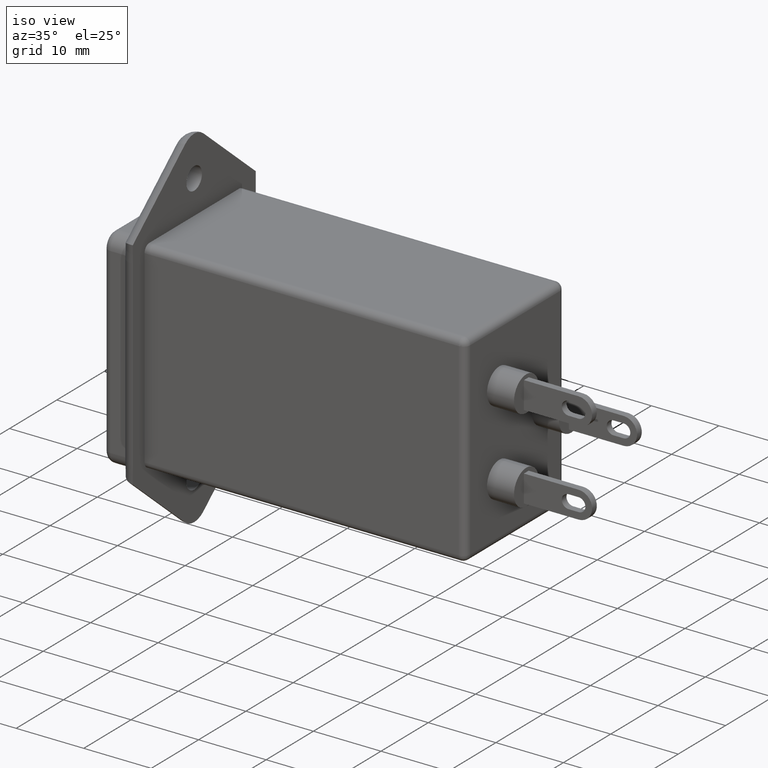
[diagram: clean part render]
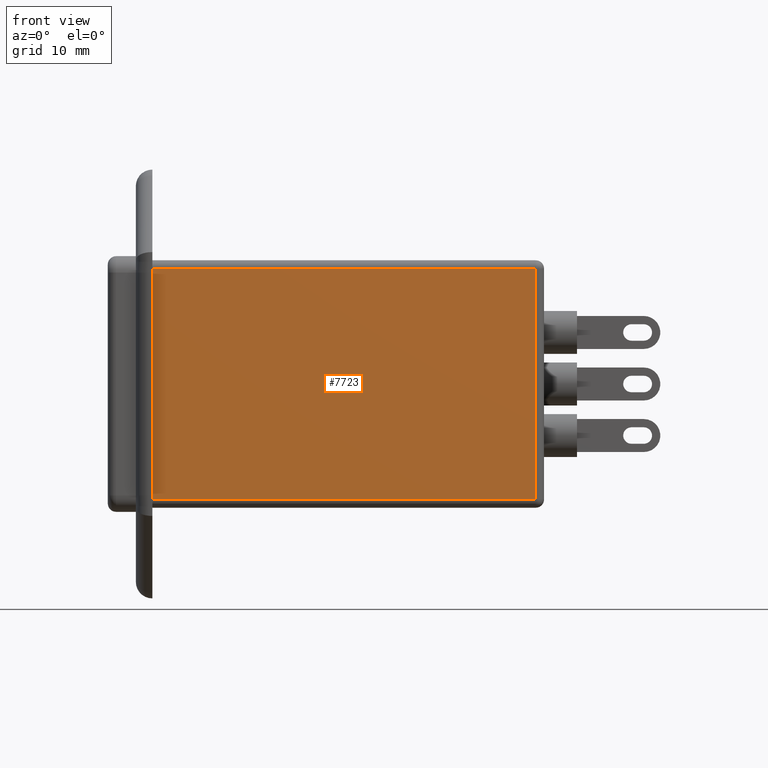
[diagram: tour spotlight — one face highlighted and labeled with its STEP entity id]
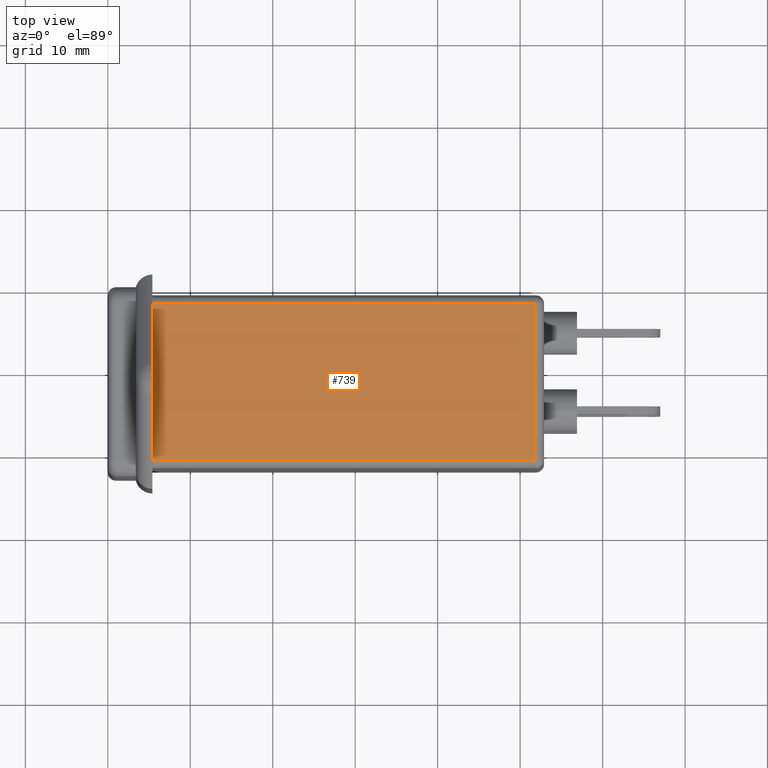
[diagram: tour spotlight — one face highlighted and labeled with its STEP entity id]
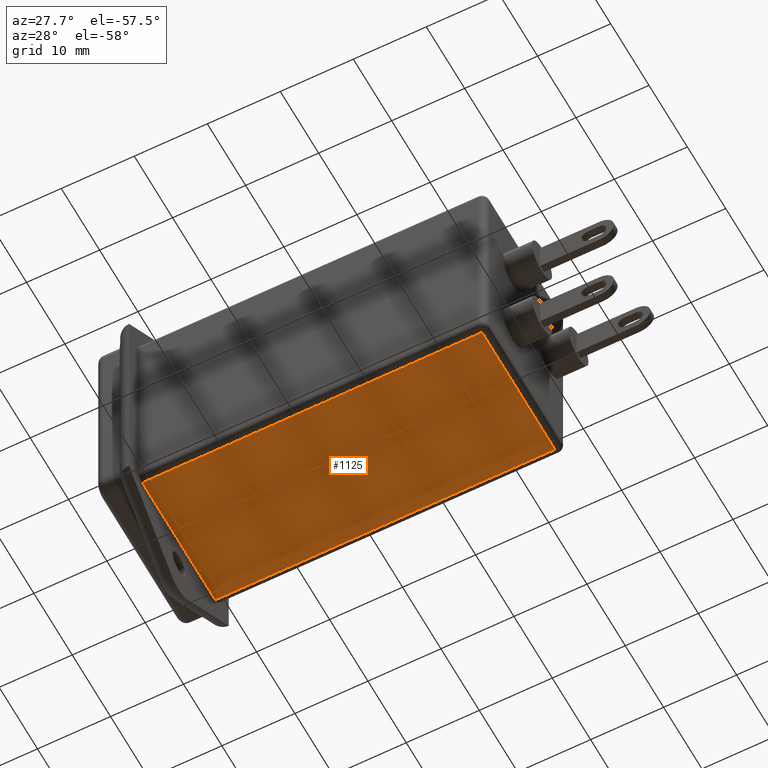
[diagram: tour spotlight — one face highlighted and labeled with its STEP entity id]
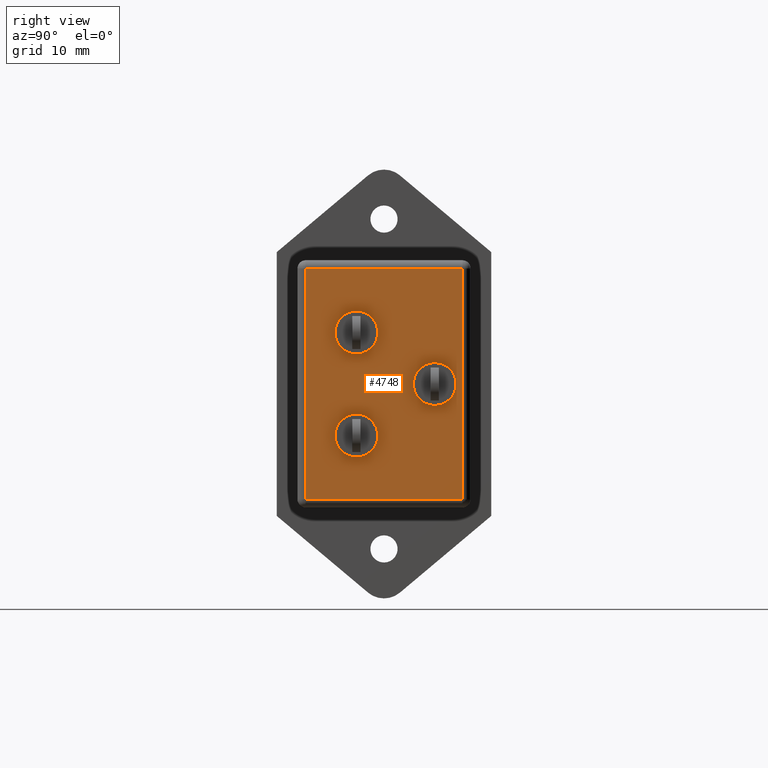
[diagram: tour spotlight — one face highlighted and labeled with its STEP entity id]
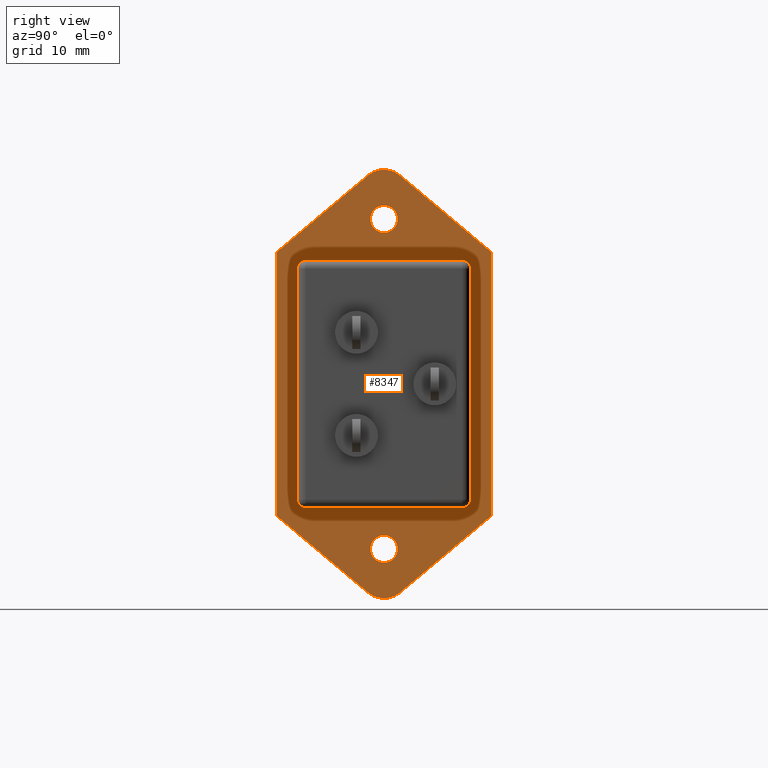
[diagram: tour spotlight — one face highlighted and labeled with its STEP entity id]
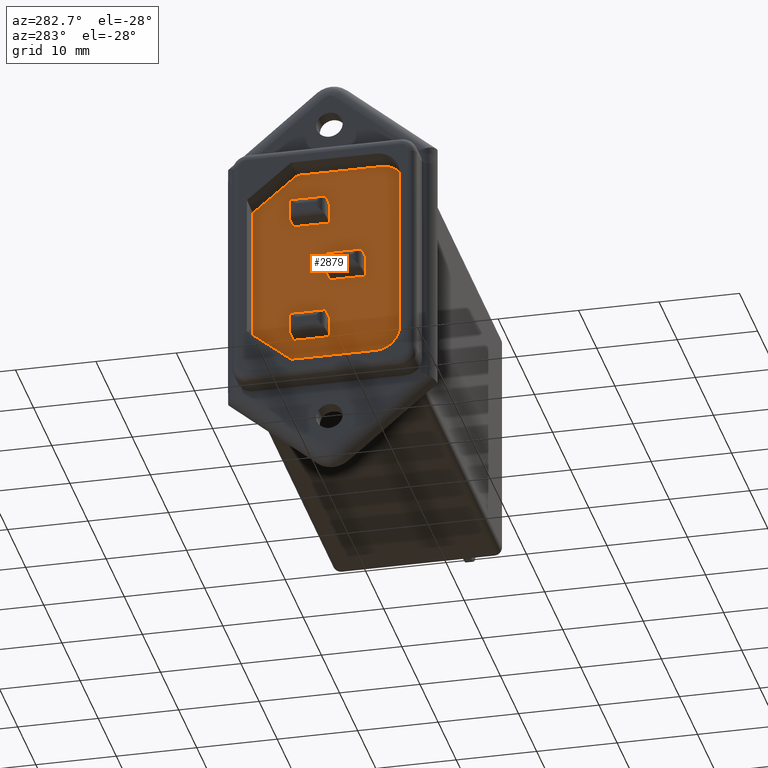
[diagram: tour spotlight — one face highlighted and labeled with its STEP entity id]
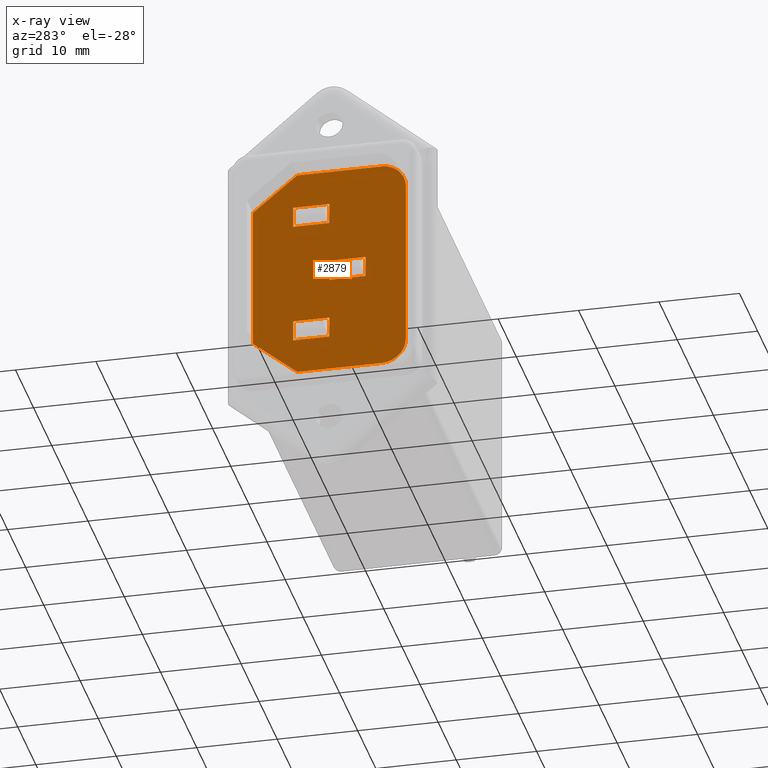
[diagram: x-ray of the same camera — body ghosted, this tour face saturated]
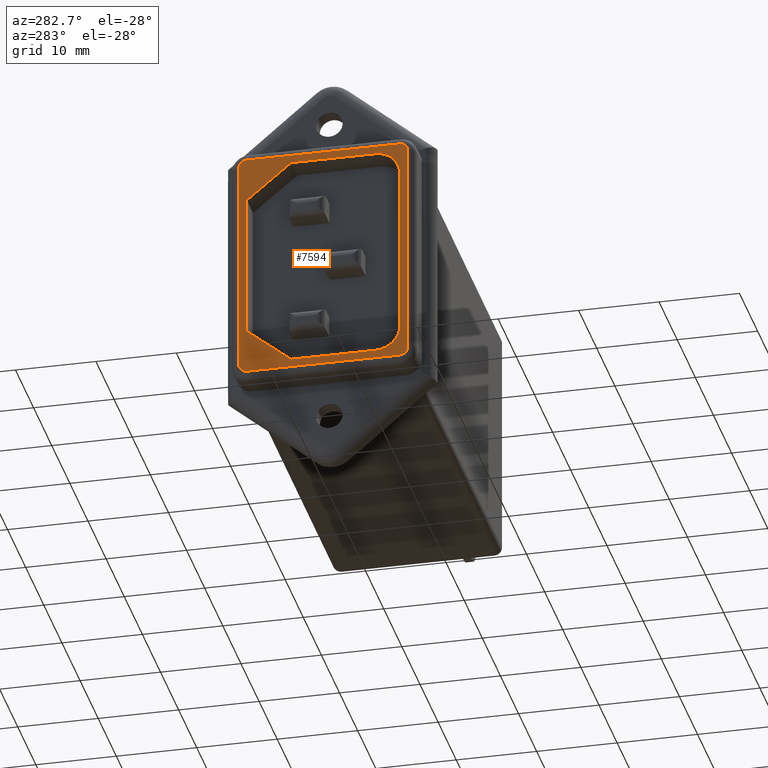
[diagram: tour spotlight — one face highlighted and labeled with its STEP entity id]
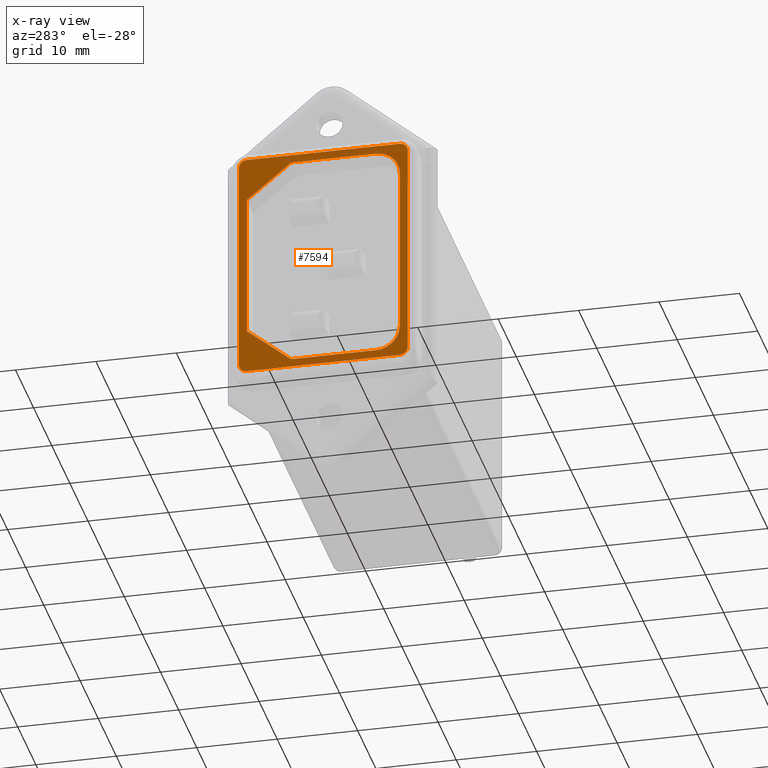
[diagram: x-ray of the same camera — body ghosted, this tour face saturated]
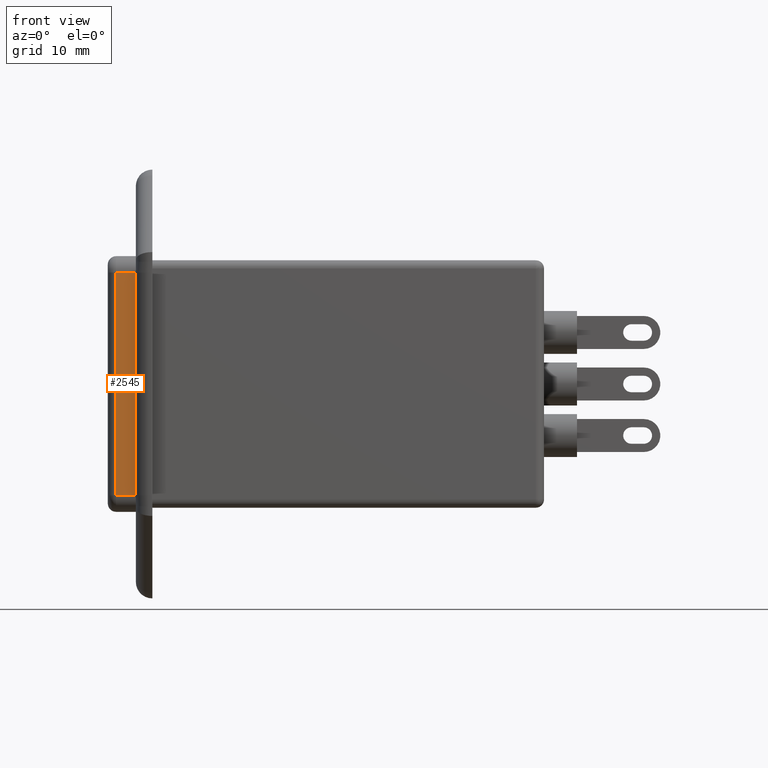
[diagram: tour spotlight — one face highlighted and labeled with its STEP entity id]
A machine part: a face-by-face anatomy tour. The part has 209 B-rep faces; the first image is the clean iso view, then the 8 largest visible faces are spotlighted one at a time (largest first), each with its STEP entity span.

Face 1 — front view, entity #7723. In plain terms, the highlighted planar face has unit normal (-0, 1, 0).
Definition (entity closure, byte-faithful):
#143 = DIRECTION ( 'NONE',  ( 1.000000000000000000, -0.0000000000000000000, -0.0000000000000000000 ) ) ;
#381 = VERTEX_POINT ( 'NONE', #2765 ) ;
#639 = VERTEX_POINT ( 'NONE', #6458 ) ;
#772 = LINE ( 'NONE', #8226, #7570 ) ;
#794 = CARTESIAN_POINT ( 'NONE',  ( 5.400000000000000400, -22.00000000000000400, 30.50000000000000000 ) ) ;
#1120 = EDGE_CURVE ( 'NONE', #7442, #1253, #772, .T. ) ;
#1253 = VERTEX_POINT ( 'NONE', #7876 ) ;
#1630 = DIRECTION ( 'NONE',  ( -0.0000000000000000000, 1.000000000000000000, 1.156482317317871500E-016 ) ) ;
#1675 = EDGE_CURVE ( 'NONE', #1253, #381, #2108, .T. ) ;
#2072 = ORIENTED_EDGE ( 'NONE', *, *, #1675, .T. ) ;
#2091 = EDGE_CURVE ( 'NONE', #639, #7442, #6577, .T. ) ;
#2108 = LINE ( 'NONE', #5713, #5853 ) ;
#2382 = ORIENTED_EDGE ( 'NONE', *, *, #8406, .T. ) ;
#2765 = CARTESIAN_POINT ( 'NONE',  ( 51.89999999999999900, -22.00000000000000400, 29.50000000000000000 ) ) ;
#2988 = DIRECTION ( 'NONE',  ( 0.0000000000000000000, -1.156482317317871500E-016, 1.000000000000000000 ) ) ;
#3012 = CARTESIAN_POINT ( 'NONE',  ( 52.90000000000000600, -22.00000000000000400, 30.50000000000000000 ) ) ;
#4036 = VECTOR ( 'NONE', #6012, 1000.000000000000000 ) ;
#5018 = FACE_OUTER_BOUND ( 'NONE', #6522, .T. ) ;
#5284 = CARTESIAN_POINT ( 'NONE',  ( 52.90000000000000600, -22.00000000000000400, 29.50000000000000000 ) ) ;
#5517 = AXIS2_PLACEMENT_3D ( 'NONE', #3012, #1630, #2988 ) ;
#5713 = CARTESIAN_POINT ( 'NONE',  ( 51.89999999999999900, -22.00000000000000400, 30.50000000000000000 ) ) ;
#5786 = LINE ( 'NONE', #5284, #4036 ) ;
#5853 = VECTOR ( 'NONE', #6271, 1000.000000000000000 ) ;
#6012 = DIRECTION ( 'NONE',  ( -1.000000000000000000, 0.0000000000000000000, 0.0000000000000000000 ) ) ;
#6083 = DIRECTION ( 'NONE',  ( 0.0000000000000000000, 1.156482317317871500E-016, -1.000000000000000000 ) ) ;
#6271 = DIRECTION ( 'NONE',  ( -0.0000000000000000000, -1.156482317317871500E-016, 1.000000000000000000 ) ) ;
#6458 = CARTESIAN_POINT ( 'NONE',  ( 5.400000000000000400, -22.00000000000000400, 29.50000000000000000 ) ) ;
#6510 = CARTESIAN_POINT ( 'NONE',  ( 5.400000000000000400, -22.00000000000000000, 1.499999999999997800 ) ) ;
#6522 = EDGE_LOOP ( 'NONE', ( #6856, #7289, #2072, #2382 ) ) ;
#6577 = LINE ( 'NONE', #794, #6988 ) ;
#6856 = ORIENTED_EDGE ( 'NONE', *, *, #2091, .T. ) ;
#6988 = VECTOR ( 'NONE', #6083, 1000.000000000000000 ) ;
#7289 = ORIENTED_EDGE ( 'NONE', *, *, #1120, .T. ) ;
#7442 = VERTEX_POINT ( 'NONE', #6510 ) ;
#7570 = VECTOR ( 'NONE', #143, 1000.000000000000000 ) ;
#7723 = ADVANCED_FACE ( 'NONE', ( #5018 ), #8372, .F. ) ;
#7876 = CARTESIAN_POINT ( 'NONE',  ( 51.89999999999999900, -22.00000000000000000, 1.499999999999999300 ) ) ;
#8226 = CARTESIAN_POINT ( 'NONE',  ( 52.90000000000000600, -22.00000000000000000, 1.499999999999997800 ) ) ;
#8372 = PLANE ( 'NONE',  #5517 ) ;
#8406 = EDGE_CURVE ( 'NONE', #381, #639, #5786, .T. ) ;

Face 2 — top view, entity #739. In plain terms, the highlighted planar face has unit normal (0, 0, -1).
Definition (entity closure, byte-faithful):
#476 = CARTESIAN_POINT ( 'NONE',  ( 51.89999999999999900, -1.999999999999995800, 30.50000000000000000 ) ) ;
#528 = EDGE_LOOP ( 'NONE', ( #1646, #2047, #8575, #7012 ) ) ;
#644 = CARTESIAN_POINT ( 'NONE',  ( 52.90000000000000600, -0.9999999999999954500, 30.50000000000000000 ) ) ;
#645 = EDGE_CURVE ( 'NONE', #8440, #8127, #2164, .T. ) ;
#739 = ADVANCED_FACE ( 'NONE', ( #7384 ), #8476, .F. ) ;
#961 = EDGE_CURVE ( 'NONE', #6623, #8440, #6930, .T. ) ;
#1398 = DIRECTION ( 'NONE',  ( -1.000000000000000000, 0.0000000000000000000, -0.0000000000000000000 ) ) ;
#1477 = CARTESIAN_POINT ( 'NONE',  ( 52.90000000000000600, -21.00000000000000000, 30.50000000000000000 ) ) ;
#1646 = ORIENTED_EDGE ( 'NONE', *, *, #645, .T. ) ;
#2047 = ORIENTED_EDGE ( 'NONE', *, *, #5087, .T. ) ;
#2164 = LINE ( 'NONE', #3909, #7796 ) ;
#2483 = DIRECTION ( 'NONE',  ( 0.0000000000000000000, -1.000000000000000000, 0.0000000000000000000 ) ) ;
#2864 = VECTOR ( 'NONE', #3612, 1000.000000000000000 ) ;
#2904 = CARTESIAN_POINT ( 'NONE',  ( 51.89999999999999900, -0.9999999999999954500, 30.50000000000000000 ) ) ;
#2968 = LINE ( 'NONE', #2904, #2864 ) ;
#3408 = CARTESIAN_POINT ( 'NONE',  ( 5.400000000000000400, -1.999999999999995800, 30.50000000000000000 ) ) ;
#3612 = DIRECTION ( 'NONE',  ( -0.0000000000000000000, 1.000000000000000000, -0.0000000000000000000 ) ) ;
#3909 = CARTESIAN_POINT ( 'NONE',  ( 5.400000000000000400, -0.9999999999999954500, 30.50000000000000000 ) ) ;
#4104 = DIRECTION ( 'NONE',  ( 1.000000000000000000, -0.0000000000000000000, -0.0000000000000000000 ) ) ;
#4244 = VECTOR ( 'NONE', #4104, 1000.000000000000000 ) ;
#5077 = VERTEX_POINT ( 'NONE', #5437 ) ;
#5087 = EDGE_CURVE ( 'NONE', #8127, #5077, #6022, .T. ) ;
#5128 = AXIS2_PLACEMENT_3D ( 'NONE', #644, #8071, #1398 ) ;
#5437 = CARTESIAN_POINT ( 'NONE',  ( 51.89999999999999900, -21.00000000000000000, 30.50000000000000000 ) ) ;
#5999 = VECTOR ( 'NONE', #8411, 1000.000000000000000 ) ;
#6022 = LINE ( 'NONE', #1477, #4244 ) ;
#6623 = VERTEX_POINT ( 'NONE', #476 ) ;
#6930 = LINE ( 'NONE', #7760, #5999 ) ;
#7012 = ORIENTED_EDGE ( 'NONE', *, *, #961, .T. ) ;
#7384 = FACE_OUTER_BOUND ( 'NONE', #528, .T. ) ;
#7684 = CARTESIAN_POINT ( 'NONE',  ( 5.400000000000000400, -21.00000000000000000, 30.50000000000000000 ) ) ;
#7760 = CARTESIAN_POINT ( 'NONE',  ( 52.90000000000000600, -1.999999999999995800, 30.50000000000000000 ) ) ;
#7796 = VECTOR ( 'NONE', #2483, 1000.000000000000000 ) ;
#8056 = EDGE_CURVE ( 'NONE', #5077, #6623, #2968, .T. ) ;
#8071 = DIRECTION ( 'NONE',  ( 0.0000000000000000000, 0.0000000000000000000, -1.000000000000000000 ) ) ;
#8127 = VERTEX_POINT ( 'NONE', #7684 ) ;
#8411 = DIRECTION ( 'NONE',  ( -1.000000000000000000, 0.0000000000000000000, 0.0000000000000000000 ) ) ;
#8440 = VERTEX_POINT ( 'NONE', #3408 ) ;
#8476 = PLANE ( 'NONE',  #5128 ) ;
#8575 = ORIENTED_EDGE ( 'NONE', *, *, #8056, .T. ) ;

Face 3 — auxiliary view, entity #1125. In plain terms, the highlighted planar face has unit normal (-0, 0, 1).
Definition (entity closure, byte-faithful):
#31 = CARTESIAN_POINT ( 'NONE',  ( 51.89999999999999900, -1.999999999999997300, 0.4999999999999997800 ) ) ;
#60 = VERTEX_POINT ( 'NONE', #2878 ) ;
#350 = DIRECTION ( 'NONE',  ( -1.000000000000000000, 0.0000000000000000000, -0.0000000000000000000 ) ) ;
#1100 = VECTOR ( 'NONE', #5094, 1000.000000000000000 ) ;
#1125 = ADVANCED_FACE ( 'NONE', ( #3904 ), #1665, .F. ) ;
#1257 = CARTESIAN_POINT ( 'NONE',  ( 52.90000000000000600, -1.999999999999997300, 0.4999999999999997800 ) ) ;
#1665 = PLANE ( 'NONE',  #6160 ) ;
#1911 = ORIENTED_EDGE ( 'NONE', *, *, #4660, .T. ) ;
#2350 = VECTOR ( 'NONE', #5927, 1000.000000000000000 ) ;
#2359 = CARTESIAN_POINT ( 'NONE',  ( 52.90000000000000600, -0.9999999999999974500, 0.4999999999999997800 ) ) ;
#2576 = DIRECTION ( 'NONE',  ( 1.000000000000000000, -0.0000000000000000000, 0.0000000000000000000 ) ) ;
#2837 = EDGE_LOOP ( 'NONE', ( #7508, #1911, #6349, #4917 ) ) ;
#2872 = EDGE_CURVE ( 'NONE', #7859, #3985, #4966, .T. ) ;
#2875 = CARTESIAN_POINT ( 'NONE',  ( 5.400000000000000400, -1.999999999999997100, 0.4999999999999997800 ) ) ;
#2878 = CARTESIAN_POINT ( 'NONE',  ( 5.400000000000000400, -20.99999999999998900, 0.4999999999999997800 ) ) ;
#3014 = DIRECTION ( 'NONE',  ( 1.000000000000000000, 0.0000000000000000000, 0.0000000000000000000 ) ) ;
#3107 = CARTESIAN_POINT ( 'NONE',  ( 51.89999999999999900, -22.00000000000000000, 0.4999999999999997800 ) ) ;
#3904 = FACE_OUTER_BOUND ( 'NONE', #2837, .T. ) ;
#3985 = VERTEX_POINT ( 'NONE', #7098 ) ;
#4113 = LINE ( 'NONE', #4599, #2350 ) ;
#4237 = VECTOR ( 'NONE', #2576, 1000.000000000000000 ) ;
#4599 = CARTESIAN_POINT ( 'NONE',  ( 5.400000000000000400, -0.9999999999999974500, 0.4999999999999997800 ) ) ;
#4660 = EDGE_CURVE ( 'NONE', #3985, #60, #7615, .T. ) ;
#4917 = ORIENTED_EDGE ( 'NONE', *, *, #6790, .T. ) ;
#4966 = LINE ( 'NONE', #3107, #1100 ) ;
#5017 = LINE ( 'NONE', #1257, #4237 ) ;
#5044 = CARTESIAN_POINT ( 'NONE',  ( 52.90000000000000600, -20.99999999999999600, 0.4999999999999997800 ) ) ;
#5094 = DIRECTION ( 'NONE',  ( -0.0000000000000000000, -1.000000000000000000, 0.0000000000000000000 ) ) ;
#5927 = DIRECTION ( 'NONE',  ( -0.0000000000000000000, 1.000000000000000000, -0.0000000000000000000 ) ) ;
#6139 = VECTOR ( 'NONE', #350, 1000.000000000000000 ) ;
#6160 = AXIS2_PLACEMENT_3D ( 'NONE', #2359, #7011, #3014 ) ;
#6349 = ORIENTED_EDGE ( 'NONE', *, *, #6734, .T. ) ;
#6734 = EDGE_CURVE ( 'NONE', #60, #7713, #4113, .T. ) ;
#6790 = EDGE_CURVE ( 'NONE', #7713, #7859, #5017, .T. ) ;
#7011 = DIRECTION ( 'NONE',  ( -0.0000000000000000000, 0.0000000000000000000, 1.000000000000000000 ) ) ;
#7098 = CARTESIAN_POINT ( 'NONE',  ( 51.89999999999999900, -20.99999999999999600, 0.4999999999999997800 ) ) ;
#7508 = ORIENTED_EDGE ( 'NONE', *, *, #2872, .T. ) ;
#7615 = LINE ( 'NONE', #5044, #6139 ) ;
#7713 = VERTEX_POINT ( 'NONE', #2875 ) ;
#7859 = VERTEX_POINT ( 'NONE', #31 ) ;

Face 4 — right view, entity #4748. In plain terms, the highlighted planar face has unit normal (1, 0, 0).
Definition (entity closure, byte-faithful):
#16 = VERTEX_POINT ( 'NONE', #3421 ) ;
#324 = DIRECTION ( 'NONE',  ( 1.000000000000000000, 0.0000000000000000000, 0.0000000000000000000 ) ) ;
#492 = LINE ( 'NONE', #4818, #721 ) ;
#662 = DIRECTION ( 'NONE',  ( 0.0000000000000000000, 0.0000000000000000000, 1.000000000000000000 ) ) ;
#679 = CARTESIAN_POINT ( 'NONE',  ( 52.90000000000000600, -14.84595794948056400, 6.649999999999990600 ) ) ;
#687 = DIRECTION ( 'NONE',  ( 1.000000000000000000, 0.0000000000000000000, -0.0000000000000000000 ) ) ;
#721 = VECTOR ( 'NONE', #4087, 1000.000000000000000 ) ;
#790 = DIRECTION ( 'NONE',  ( -0.0000000000000000000, 6.505213034913026600E-017, 1.000000000000000000 ) ) ;
#798 = AXIS2_PLACEMENT_3D ( 'NONE', #7346, #8030, #7437 ) ;
#800 = VERTEX_POINT ( 'NONE', #6123 ) ;
#1148 = DIRECTION ( 'NONE',  ( 0.0000000000000000000, 0.0000000000000000000, -1.000000000000000000 ) ) ;
#1309 = VERTEX_POINT ( 'NONE', #679 ) ;
#1698 = AXIS2_PLACEMENT_3D ( 'NONE', #2551, #3202, #1874 ) ;
#1705 = CARTESIAN_POINT ( 'NONE',  ( 52.90000000000000600, -14.84595794948056400, 24.34999999999999800 ) ) ;
#1755 = DIRECTION ( 'NONE',  ( 0.0000000000000000000, 0.0000000000000000000, -1.000000000000000000 ) ) ;
#1874 = DIRECTION ( 'NONE',  ( 0.0000000000000000000, 0.0000000000000000000, -1.000000000000000000 ) ) ;
#1991 = EDGE_CURVE ( 'NONE', #16, #2013, #4683, .T. ) ;
#2013 = VERTEX_POINT ( 'NONE', #5295 ) ;
#2062 = ORIENTED_EDGE ( 'NONE', *, *, #2736, .T. ) ;
#2075 = EDGE_CURVE ( 'NONE', #4379, #7516, #3340, .T. ) ;
#2118 = CARTESIAN_POINT ( 'NONE',  ( 52.90000000000000600, -0.9999999999999974500, 1.499999999999999600 ) ) ;
#2251 = EDGE_CURVE ( 'NONE', #7516, #800, #6680, .T. ) ;
#2273 = CARTESIAN_POINT ( 'NONE',  ( 52.90000000000000600, -21.00000000000000000, 29.50000000000000000 ) ) ;
#2485 = DIRECTION ( 'NONE',  ( 1.000000000000000000, 0.0000000000000000000, 0.0000000000000000000 ) ) ;
#2503 = VECTOR ( 'NONE', #4745, 1000.000000000000000 ) ;
#2515 = AXIS2_PLACEMENT_3D ( 'NONE', #5312, #7275, #2633 ) ;
#2551 = CARTESIAN_POINT ( 'NONE',  ( 52.90000000000000600, -14.84595794948056400, 21.75000000000000000 ) ) ;
#2608 = CARTESIAN_POINT ( 'NONE',  ( 52.90000000000000600, -14.84595794948056400, 21.75000000000000000 ) ) ;
#2633 = DIRECTION ( 'NONE',  ( 0.0000000000000000000, 0.0000000000000000000, 1.000000000000000000 ) ) ;
#2664 = CARTESIAN_POINT ( 'NONE',  ( 52.90000000000000600, -20.99999999999999600, 1.499999999999999600 ) ) ;
#2736 = EDGE_CURVE ( 'NONE', #800, #6296, #8132, .T. ) ;
#2871 = CARTESIAN_POINT ( 'NONE',  ( 52.90000000000000600, -14.84595794948056400, 11.84999999999999100 ) ) ;
#2975 = EDGE_CURVE ( 'NONE', #3224, #1309, #7337, .T. ) ;
#3017 = CIRCLE ( 'NONE', #7262, 2.600000000000000100 ) ;
#3202 = DIRECTION ( 'NONE',  ( 1.000000000000000000, 0.0000000000000000000, 0.0000000000000000000 ) ) ;
#3224 = VERTEX_POINT ( 'NONE', #2871 ) ;
#3298 = CIRCLE ( 'NONE', #3722, 2.599999999999998300 ) ;
#3303 = VERTEX_POINT ( 'NONE', #8001 ) ;
#3315 = VECTOR ( 'NONE', #8554, 1000.000000000000000 ) ;
#3340 = LINE ( 'NONE', #2118, #2503 ) ;
#3395 = EDGE_LOOP ( 'NONE', ( #2062, #4217, #7502, #7085 ) ) ;
#3421 = CARTESIAN_POINT ( 'NONE',  ( 52.90000000000000600, -5.345957949480562900, 18.09999999999999800 ) ) ;
#3722 = AXIS2_PLACEMENT_3D ( 'NONE', #2608, #2485, #1148 ) ;
#3914 = EDGE_CURVE ( 'NONE', #2013, #16, #3017, .T. ) ;
#4074 = CARTESIAN_POINT ( 'NONE',  ( 52.90000000000000600, -1.999999999999995800, 30.50000000000000000 ) ) ;
#4087 = DIRECTION ( 'NONE',  ( 0.0000000000000000000, 1.156482317317871500E-016, -1.000000000000000000 ) ) ;
#4105 = EDGE_CURVE ( 'NONE', #5353, #3303, #5454, .T. ) ;
#4217 = ORIENTED_EDGE ( 'NONE', *, *, #5710, .T. ) ;
#4247 = ORIENTED_EDGE ( 'NONE', *, *, #2975, .F. ) ;
#4309 = CARTESIAN_POINT ( 'NONE',  ( 52.90000000000000600, 0.0000000000000000000, 0.0000000000000000000 ) ) ;
#4379 = VERTEX_POINT ( 'NONE', #2664 ) ;
#4412 = PLANE ( 'NONE',  #5480 ) ;
#4450 = FACE_OUTER_BOUND ( 'NONE', #3395, .T. ) ;
#4670 = CARTESIAN_POINT ( 'NONE',  ( 52.90000000000000600, -14.84595794948056400, 9.249999999999991100 ) ) ;
#4683 = CIRCLE ( 'NONE', #798, 2.600000000000000100 ) ;
#4745 = DIRECTION ( 'NONE',  ( 0.0000000000000000000, 1.000000000000000000, -0.0000000000000000000 ) ) ;
#4748 = ADVANCED_FACE ( 'NONE', ( #4450, #5928, #6039, #5615 ), #4412, .T. ) ;
#4818 = CARTESIAN_POINT ( 'NONE',  ( 52.90000000000000600, -20.99999999999999600, 0.4999999999999998900 ) ) ;
#4878 = VECTOR ( 'NONE', #790, 1000.000000000000000 ) ;
#5157 = DIRECTION ( 'NONE',  ( 1.000000000000000000, 0.0000000000000000000, 0.0000000000000000000 ) ) ;
#5238 = CARTESIAN_POINT ( 'NONE',  ( 52.90000000000000600, -22.00000000000000400, 29.50000000000000000 ) ) ;
#5295 = CARTESIAN_POINT ( 'NONE',  ( 52.90000000000000600, -5.345957949480562900, 12.89999999999999900 ) ) ;
#5312 = CARTESIAN_POINT ( 'NONE',  ( 52.90000000000000600, -14.84595794948056400, 9.249999999999991100 ) ) ;
#5353 = VERTEX_POINT ( 'NONE', #1705 ) ;
#5416 = ORIENTED_EDGE ( 'NONE', *, *, #7471, .F. ) ;
#5454 = CIRCLE ( 'NONE', #1698, 2.599999999999998300 ) ;
#5480 = AXIS2_PLACEMENT_3D ( 'NONE', #4309, #324, #1755 ) ;
#5615 = FACE_BOUND ( 'NONE', #6633, .T. ) ;
#5710 = EDGE_CURVE ( 'NONE', #6296, #4379, #492, .T. ) ;
#5928 = FACE_BOUND ( 'NONE', #7725, .T. ) ;
#6039 = FACE_BOUND ( 'NONE', #8117, .T. ) ;
#6086 = CARTESIAN_POINT ( 'NONE',  ( 52.90000000000000600, -1.999999999999997300, 1.499999999999999600 ) ) ;
#6123 = CARTESIAN_POINT ( 'NONE',  ( 52.90000000000000600, -1.999999999999995800, 29.50000000000000000 ) ) ;
#6296 = VERTEX_POINT ( 'NONE', #2273 ) ;
#6336 = ORIENTED_EDGE ( 'NONE', *, *, #1991, .F. ) ;
#6362 = ORIENTED_EDGE ( 'NONE', *, *, #4105, .F. ) ;
#6578 = DIRECTION ( 'NONE',  ( 0.0000000000000000000, 0.0000000000000000000, -1.000000000000000000 ) ) ;
#6633 = EDGE_LOOP ( 'NONE', ( #4247, #5416 ) ) ;
#6680 = LINE ( 'NONE', #4074, #4878 ) ;
#7002 = ORIENTED_EDGE ( 'NONE', *, *, #8282, .F. ) ;
#7085 = ORIENTED_EDGE ( 'NONE', *, *, #2251, .T. ) ;
#7262 = AXIS2_PLACEMENT_3D ( 'NONE', #8512, #5157, #6578 ) ;
#7275 = DIRECTION ( 'NONE',  ( 1.000000000000000000, 0.0000000000000000000, -0.0000000000000000000 ) ) ;
#7315 = CIRCLE ( 'NONE', #8436, 2.600000000000000100 ) ;
#7337 = CIRCLE ( 'NONE', #2515, 2.600000000000000100 ) ;
#7346 = CARTESIAN_POINT ( 'NONE',  ( 52.90000000000000600, -5.345957949480562900, 15.49999999999999800 ) ) ;
#7437 = DIRECTION ( 'NONE',  ( 0.0000000000000000000, 0.0000000000000000000, -1.000000000000000000 ) ) ;
#7471 = EDGE_CURVE ( 'NONE', #1309, #3224, #7315, .T. ) ;
#7502 = ORIENTED_EDGE ( 'NONE', *, *, #2075, .T. ) ;
#7516 = VERTEX_POINT ( 'NONE', #6086 ) ;
#7725 = EDGE_LOOP ( 'NONE', ( #6362, #7002 ) ) ;
#8001 = CARTESIAN_POINT ( 'NONE',  ( 52.90000000000000600, -14.84595794948056400, 19.14999999999999900 ) ) ;
#8030 = DIRECTION ( 'NONE',  ( 1.000000000000000000, 0.0000000000000000000, 0.0000000000000000000 ) ) ;
#8117 = EDGE_LOOP ( 'NONE', ( #6336, #8166 ) ) ;
#8132 = LINE ( 'NONE', #5238, #3315 ) ;
#8166 = ORIENTED_EDGE ( 'NONE', *, *, #3914, .F. ) ;
#8282 = EDGE_CURVE ( 'NONE', #3303, #5353, #3298, .T. ) ;
#8436 = AXIS2_PLACEMENT_3D ( 'NONE', #4670, #687, #662 ) ;
#8512 = CARTESIAN_POINT ( 'NONE',  ( 52.90000000000000600, -5.345957949480562900, 15.49999999999999800 ) ) ;
#8554 = DIRECTION ( 'NONE',  ( 0.0000000000000000000, -1.000000000000000000, 0.0000000000000000000 ) ) ;

Face 5 — right view, entity #8347. In plain terms, the highlighted planar face has unit normal (-1, -0, 0).
Definition (entity closure, byte-faithful):
#21 = AXIS2_PLACEMENT_3D ( 'NONE', #1296, #141, #1525 ) ;
#48 = DIRECTION ( 'NONE',  ( 0.0000000000000000000, 0.0000000000000000000, 1.000000000000000000 ) ) ;
#56 = LINE ( 'NONE', #4218, #1620 ) ;
#60 = VERTEX_POINT ( 'NONE', #2878 ) ;
#77 = DIRECTION ( 'NONE',  ( -0.0000000000000000000, 6.505213034913026600E-017, 1.000000000000000000 ) ) ;
#140 = CARTESIAN_POINT ( 'NONE',  ( 5.400000000000000400, -24.49999999999999600, -0.5000000000000056600 ) ) ;
#141 = DIRECTION ( 'NONE',  ( -1.000000000000000000, -0.0000000000000000000, 0.0000000000000000000 ) ) ;
#164 = LINE ( 'NONE', #4118, #3308 ) ;
#172 = CARTESIAN_POINT ( 'NONE',  ( 5.400000000000000400, -11.50000000000000200, -4.500000000000003600 ) ) ;
#229 = EDGE_CURVE ( 'NONE', #8657, #5104, #2591, .T. ) ;
#243 = CIRCLE ( 'NONE', #8579, 2.999999999999988900 ) ;
#256 = DIRECTION ( 'NONE',  ( -1.000000000000000000, -0.0000000000000000000, 0.0000000000000000000 ) ) ;
#270 = VERTEX_POINT ( 'NONE', #7223 ) ;
#282 = VERTEX_POINT ( 'NONE', #1260 ) ;
#330 = VECTOR ( 'NONE', #5696, 1000.000000000000200 ) ;
#339 = EDGE_CURVE ( 'NONE', #8191, #1300, #164, .T. ) ;
#380 = DIRECTION ( 'NONE',  ( -0.0000000000000000000, -2.032879073410320300E-016, -1.000000000000000000 ) ) ;
#402 = ORIENTED_EDGE ( 'NONE', *, *, #3701, .T. ) ;
#412 = CIRCLE ( 'NONE', #4712, 1.000000000000000000 ) ;
#420 = ORIENTED_EDGE ( 'NONE', *, *, #6288, .F. ) ;
#487 = CARTESIAN_POINT ( 'NONE',  ( 5.400000000000000400, -24.49999999999999600, -0.5000000000000056600 ) ) ;
#620 = EDGE_CURVE ( 'NONE', #7219, #3173, #5703, .T. ) ;
#638 = DIRECTION ( 'NONE',  ( 0.0000000000000000000, 0.0000000000000000000, 1.000000000000000000 ) ) ;
#639 = VERTEX_POINT ( 'NONE', #6458 ) ;
#645 = EDGE_CURVE ( 'NONE', #8440, #8127, #2164, .T. ) ;
#708 = CARTESIAN_POINT ( 'NONE',  ( 5.400000000000000400, -0.9999999999999954500, 29.50000000000000000 ) ) ;
#734 = VECTOR ( 'NONE', #3200, 1000.000000000000100 ) ;
#788 = DIRECTION ( 'NONE',  ( -0.0000000000000000000, -2.032879073410320300E-016, -1.000000000000000000 ) ) ;
#794 = CARTESIAN_POINT ( 'NONE',  ( 5.400000000000000400, -22.00000000000000400, 30.50000000000000000 ) ) ;
#892 = CARTESIAN_POINT ( 'NONE',  ( 5.400000000000000400, -9.570672118390733700, -9.797323208702925600 ) ) ;
#897 = AXIS2_PLACEMENT_3D ( 'NONE', #172, #256, #6839 ) ;
#914 = EDGE_CURVE ( 'NONE', #3054, #7208, #243, .T. ) ;
#1065 = AXIS2_PLACEMENT_3D ( 'NONE', #3928, #6585, #3277 ) ;
#1073 = EDGE_CURVE ( 'NONE', #3552, #282, #1799, .T. ) ;
#1179 = EDGE_CURVE ( 'NONE', #2865, #3054, #5567, .T. ) ;
#1180 = ORIENTED_EDGE ( 'NONE', *, *, #5269, .F. ) ;
#1189 = DIRECTION ( 'NONE',  ( 0.0000000000000000000, -0.7657744029009748700, 0.6431092938697554600 ) ) ;
#1260 = CARTESIAN_POINT ( 'NONE',  ( 5.400000000000000400, -11.50000000000000200, -6.150000000000004800 ) ) ;
#1287 = PLANE ( 'NONE',  #8172 ) ;
#1296 = CARTESIAN_POINT ( 'NONE',  ( 5.400000000000002100, -20.99999999999999600, 1.499999999999999600 ) ) ;
#1300 = VERTEX_POINT ( 'NONE', #708 ) ;
#1303 = CIRCLE ( 'NONE', #4242, 1.649999999999998600 ) ;
#1432 = ORIENTED_EDGE ( 'NONE', *, *, #2091, .F. ) ;
#1443 = ORIENTED_EDGE ( 'NONE', *, *, #8432, .T. ) ;
#1448 = CARTESIAN_POINT ( 'NONE',  ( 5.400000000000000400, -11.50000000000000200, -10.50000000000000200 ) ) ;
#1489 = VERTEX_POINT ( 'NONE', #3325 ) ;
#1493 = CIRCLE ( 'NONE', #1065, 1.000000000000000900 ) ;
#1525 = DIRECTION ( 'NONE',  ( 0.0000000000000000000, 0.0000000000000000000, 1.000000000000000000 ) ) ;
#1535 = CARTESIAN_POINT ( 'NONE',  ( 5.400000000000000400, -11.50000000000000200, 41.49999999999998600 ) ) ;
#1547 = VECTOR ( 'NONE', #1922, 1000.000000000000000 ) ;
#1574 = LINE ( 'NONE', #3138, #3119 ) ;
#1620 = VECTOR ( 'NONE', #1189, 1000.000000000000100 ) ;
#1670 = ORIENTED_EDGE ( 'NONE', *, *, #3392, .T. ) ;
#1693 = DIRECTION ( 'NONE',  ( 0.0000000000000000000, 0.0000000000000000000, 1.000000000000000000 ) ) ;
#1711 = CARTESIAN_POINT ( 'NONE',  ( 5.400000000000000400, -13.42932788160925000, 40.79732320870291300 ) ) ;
#1746 = CARTESIAN_POINT ( 'NONE',  ( 5.400000000000000400, -11.50000000000000200, -4.500000000000003600 ) ) ;
#1799 = CIRCLE ( 'NONE', #897, 1.650000000000000400 ) ;
#1805 = CARTESIAN_POINT ( 'NONE',  ( 5.400000000000000400, -24.49999999999999600, 31.49999999999999300 ) ) ;
#1857 = ORIENTED_EDGE ( 'NONE', *, *, #645, .F. ) ;
#1891 = CARTESIAN_POINT ( 'NONE',  ( 5.400000000000000400, 1.500000000000006700, 31.50000000000000000 ) ) ;
#1922 = DIRECTION ( 'NONE',  ( 0.0000000000000000000, 0.0000000000000000000, 1.000000000000000000 ) ) ;
#1935 = VECTOR ( 'NONE', #5855, 999.9999999999998900 ) ;
#2021 = VERTEX_POINT ( 'NONE', #2696 ) ;
#2044 = CARTESIAN_POINT ( 'NONE',  ( 5.400000000000000400, 0.0000000000000000000, 0.0000000000000000000 ) ) ;
#2065 = ORIENTED_EDGE ( 'NONE', *, *, #6734, .F. ) ;
#2088 = EDGE_LOOP ( 'NONE', ( #4876, #1443 ) ) ;
#2091 = EDGE_CURVE ( 'NONE', #639, #7442, #6577, .T. ) ;
#2141 = ORIENTED_EDGE ( 'NONE', *, *, #1179, .F. ) ;
#2164 = LINE ( 'NONE', #3909, #7796 ) ;
#2247 = CARTESIAN_POINT ( 'NONE',  ( 5.400000000000000400, -11.50000000000000200, 37.14999999999999900 ) ) ;
#2261 = LINE ( 'NONE', #5655, #7269 ) ;
#2306 = DIRECTION ( 'NONE',  ( 0.0000000000000000000, 0.0000000000000000000, -1.000000000000000000 ) ) ;
#2313 = ORIENTED_EDGE ( 'NONE', *, *, #7069, .T. ) ;
#2316 = AXIS2_PLACEMENT_3D ( 'NONE', #7933, #4508, #5185 ) ;
#2350 = VECTOR ( 'NONE', #5927, 1000.000000000000000 ) ;
#2391 = DIRECTION ( 'NONE',  ( -0.0000000000000000000, -2.032879073410320300E-016, -1.000000000000000000 ) ) ;
#2432 = EDGE_CURVE ( 'NONE', #7897, #8335, #6774, .T. ) ;
#2483 = DIRECTION ( 'NONE',  ( 0.0000000000000000000, -1.000000000000000000, 0.0000000000000000000 ) ) ;
#2514 = DIRECTION ( 'NONE',  ( 0.0000000000000000000, 0.0000000000000000000, 1.000000000000000000 ) ) ;
#2561 = LINE ( 'NONE', #1891, #1935 ) ;
#2591 = CIRCLE ( 'NONE', #4696, 2.999999999999999100 ) ;
#2612 = DIRECTION ( 'NONE',  ( -1.000000000000000000, 0.0000000000000000000, 0.0000000000000000000 ) ) ;
#2619 = AXIS2_PLACEMENT_3D ( 'NONE', #1746, #3764, #1693 ) ;
#2630 = LINE ( 'NONE', #3793, #734 ) ;
#2641 = ORIENTED_EDGE ( 'NONE', *, *, #6010, .T. ) ;
#2696 = CARTESIAN_POINT ( 'NONE',  ( 5.400000000000000400, 1.500000000000006400, 30.32287565553228600 ) ) ;
#2823 = CIRCLE ( 'NONE', #2619, 1.650000000000000400 ) ;
#2827 = DIRECTION ( 'NONE',  ( 0.0000000000000000000, 0.0000000000000000000, 1.000000000000000000 ) ) ;
#2865 = VERTEX_POINT ( 'NONE', #1805 ) ;
#2875 = CARTESIAN_POINT ( 'NONE',  ( 5.400000000000000400, -1.999999999999997100, 0.4999999999999997800 ) ) ;
#2878 = CARTESIAN_POINT ( 'NONE',  ( 5.400000000000000400, -20.99999999999998900, 0.4999999999999997800 ) ) ;
#2909 = ORIENTED_EDGE ( 'NONE', *, *, #6942, .F. ) ;
#2937 = EDGE_CURVE ( 'NONE', #5326, #2021, #1574, .T. ) ;
#3054 = VERTEX_POINT ( 'NONE', #8621 ) ;
#3063 = CARTESIAN_POINT ( 'NONE',  ( 5.400000000000000400, -0.9999999999999974500, 1.500000000000001300 ) ) ;
#3094 = CARTESIAN_POINT ( 'NONE',  ( 5.400000000000000400, -24.49999999999999600, 30.32287565553230000 ) ) ;
#3110 = ORIENTED_EDGE ( 'NONE', *, *, #339, .F. ) ;
#3119 = VECTOR ( 'NONE', #2391, 1000.000000000000000 ) ;
#3134 = EDGE_CURVE ( 'NONE', #1489, #8657, #2630, .T. ) ;
#3138 = CARTESIAN_POINT ( 'NONE',  ( 5.400000000000000400, 1.500000000000000200, -0.5000000000000062200 ) ) ;
#3146 = CIRCLE ( 'NONE', #21, 1.000000000000000000 ) ;
#3173 = VERTEX_POINT ( 'NONE', #7847 ) ;
#3200 = DIRECTION ( 'NONE',  ( 0.0000000000000000000, -0.7657744029009748700, -0.6431092938697553500 ) ) ;
#3221 = VECTOR ( 'NONE', #4525, 1000.000000000000000 ) ;
#3223 = CARTESIAN_POINT ( 'NONE',  ( 5.400000000000000400, -24.49999999999999600, 0.6771243444677032000 ) ) ;
#3277 = DIRECTION ( 'NONE',  ( 0.0000000000000000000, 0.0000000000000000000, 1.000000000000000000 ) ) ;
#3308 = VECTOR ( 'NONE', #77, 1000.000000000000000 ) ;
#3325 = CARTESIAN_POINT ( 'NONE',  ( 5.400000000000000400, 1.500000000000000200, -0.5000000000000062200 ) ) ;
#3385 = EDGE_LOOP ( 'NONE', ( #7066, #8574, #5916, #5359, #4568, #420, #6801, #2141, #7168, #2909, #4289, #1180, #8353, #5368 ) ) ;
#3391 = VECTOR ( 'NONE', #788, 1000.000000000000000 ) ;
#3392 = EDGE_CURVE ( 'NONE', #60, #7442, #3146, .T. ) ;
#3408 = CARTESIAN_POINT ( 'NONE',  ( 5.400000000000000400, -1.999999999999995800, 30.50000000000000000 ) ) ;
#3441 = CARTESIAN_POINT ( 'NONE',  ( 5.400000000000000400, -13.42932788160926800, -9.797323208702925600 ) ) ;
#3461 = CARTESIAN_POINT ( 'NONE',  ( 5.400000000000000400, -11.50000000000000200, 35.50000000000000000 ) ) ;
#3552 = VERTEX_POINT ( 'NONE', #3559 ) ;
#3559 = CARTESIAN_POINT ( 'NONE',  ( 5.400000000000000400, -11.50000000000000200, -2.850000000000003600 ) ) ;
#3701 = EDGE_CURVE ( 'NONE', #639, #8127, #7344, .T. ) ;
#3764 = DIRECTION ( 'NONE',  ( -1.000000000000000000, -0.0000000000000000000, 0.0000000000000000000 ) ) ;
#3793 = CARTESIAN_POINT ( 'NONE',  ( 5.400000000000000400, 1.500000000000000200, -0.5000000000000062200 ) ) ;
#3834 = VERTEX_POINT ( 'NONE', #6536 ) ;
#3854 = CARTESIAN_POINT ( 'NONE',  ( 5.400000000000002100, -21.00000000000000000, 29.50000000000000000 ) ) ;
#3909 = CARTESIAN_POINT ( 'NONE',  ( 5.400000000000000400, -0.9999999999999954500, 30.50000000000000000 ) ) ;
#3928 = CARTESIAN_POINT ( 'NONE',  ( 5.400000000000002100, -1.999999999999995800, 29.50000000000000000 ) ) ;
#3929 = EDGE_CURVE ( 'NONE', #282, #3552, #2823, .T. ) ;
#3947 = DIRECTION ( 'NONE',  ( -1.000000000000000000, -0.0000000000000000000, 0.0000000000000000000 ) ) ;
#3951 = EDGE_CURVE ( 'NONE', #5104, #4545, #6375, .T. ) ;
#4066 = DIRECTION ( 'NONE',  ( -1.000000000000000000, -0.0000000000000000000, 0.0000000000000000000 ) ) ;
#4113 = LINE ( 'NONE', #4599, #2350 ) ;
#4118 = CARTESIAN_POINT ( 'NONE',  ( 5.400000000000000400, -0.9999999999999954500, 30.50000000000000000 ) ) ;
#4218 = CARTESIAN_POINT ( 'NONE',  ( 5.400000000000000400, -13.42932788160926800, -9.797323208702925600 ) ) ;
#4242 = AXIS2_PLACEMENT_3D ( 'NONE', #3461, #5538, #6852 ) ;
#4289 = ORIENTED_EDGE ( 'NONE', *, *, #2432, .F. ) ;
#4403 = DIRECTION ( 'NONE',  ( 0.0000000000000000000, 0.0000000000000000000, 1.000000000000000000 ) ) ;
#4431 = DIRECTION ( 'NONE',  ( -1.000000000000000000, 0.0000000000000000000, 0.0000000000000000000 ) ) ;
#4508 = DIRECTION ( 'NONE',  ( -1.000000000000000000, -0.0000000000000000000, 0.0000000000000000000 ) ) ;
#4525 = DIRECTION ( 'NONE',  ( 0.0000000000000000000, 0.0000000000000000000, 1.000000000000000000 ) ) ;
#4545 = VERTEX_POINT ( 'NONE', #3441 ) ;
#4568 = ORIENTED_EDGE ( 'NONE', *, *, #5493, .F. ) ;
#4599 = CARTESIAN_POINT ( 'NONE',  ( 5.400000000000000400, -0.9999999999999974500, 0.4999999999999997800 ) ) ;
#4628 = LINE ( 'NONE', #8107, #3391 ) ;
#4696 = AXIS2_PLACEMENT_3D ( 'NONE', #5866, #2612, #2514 ) ;
#4712 = AXIS2_PLACEMENT_3D ( 'NONE', #7501, #4729, #2827 ) ;
#4729 = DIRECTION ( 'NONE',  ( -1.000000000000000000, -0.0000000000000000000, 0.0000000000000000000 ) ) ;
#4876 = ORIENTED_EDGE ( 'NONE', *, *, #620, .T. ) ;
#5047 = CIRCLE ( 'NONE', #6946, 2.999999999999988900 ) ;
#5104 = VERTEX_POINT ( 'NONE', #1448 ) ;
#5185 = DIRECTION ( 'NONE',  ( 0.0000000000000000000, 0.0000000000000000000, 1.000000000000000000 ) ) ;
#5269 = EDGE_CURVE ( 'NONE', #4545, #7897, #56, .T. ) ;
#5326 = VERTEX_POINT ( 'NONE', #7057 ) ;
#5359 = ORIENTED_EDGE ( 'NONE', *, *, #2937, .F. ) ;
#5368 = ORIENTED_EDGE ( 'NONE', *, *, #229, .F. ) ;
#5406 = EDGE_CURVE ( 'NONE', #2021, #270, #2261, .T. ) ;
#5409 = ORIENTED_EDGE ( 'NONE', *, *, #3929, .T. ) ;
#5493 = EDGE_CURVE ( 'NONE', #3834, #5326, #2561, .T. ) ;
#5538 = DIRECTION ( 'NONE',  ( -1.000000000000000000, -0.0000000000000000000, 0.0000000000000000000 ) ) ;
#5567 = LINE ( 'NONE', #1711, #330 ) ;
#5655 = CARTESIAN_POINT ( 'NONE',  ( 5.400000000000000400, 1.500000000000000200, -0.5000000000000062200 ) ) ;
#5696 = DIRECTION ( 'NONE',  ( -0.0000000000000000000, 0.7657744029009753200, 0.6431092938697547900 ) ) ;
#5703 = CIRCLE ( 'NONE', #2316, 1.649999999999998600 ) ;
#5727 = CARTESIAN_POINT ( 'NONE',  ( 5.400000000000000400, -11.50000000000000200, -7.500000000000002700 ) ) ;
#5828 = DIRECTION ( 'NONE',  ( 0.0000000000000000000, 0.0000000000000000000, 1.000000000000000000 ) ) ;
#5834 = AXIS2_PLACEMENT_3D ( 'NONE', #3854, #3947, #5828 ) ;
#5855 = DIRECTION ( 'NONE',  ( -0.0000000000000000000, 0.7657744029009753200, -0.6431092938697549100 ) ) ;
#5866 = CARTESIAN_POINT ( 'NONE',  ( 5.400000000000000400, -11.50000000000000200, -7.500000000000002700 ) ) ;
#5916 = ORIENTED_EDGE ( 'NONE', *, *, #5406, .F. ) ;
#5921 = CARTESIAN_POINT ( 'NONE',  ( 5.400000000000000400, -24.49999999999999600, -0.5000000000000056600 ) ) ;
#5927 = DIRECTION ( 'NONE',  ( -0.0000000000000000000, 1.000000000000000000, -0.0000000000000000000 ) ) ;
#6010 = EDGE_CURVE ( 'NONE', #8440, #1300, #1493, .T. ) ;
#6083 = DIRECTION ( 'NONE',  ( 0.0000000000000000000, 1.156482317317871500E-016, -1.000000000000000000 ) ) ;
#6228 = CARTESIAN_POINT ( 'NONE',  ( 5.400000000000000400, -11.50000000000000200, 38.50000000000000000 ) ) ;
#6288 = EDGE_CURVE ( 'NONE', #7208, #3834, #5047, .T. ) ;
#6292 = CARTESIAN_POINT ( 'NONE',  ( 5.400000000000000400, -11.50000000000000200, 38.50000000000000000 ) ) ;
#6375 = CIRCLE ( 'NONE', #8607, 2.999999999999999100 ) ;
#6451 = EDGE_CURVE ( 'NONE', #270, #1489, #4628, .T. ) ;
#6458 = CARTESIAN_POINT ( 'NONE',  ( 5.400000000000000400, -22.00000000000000400, 29.50000000000000000 ) ) ;
#6510 = CARTESIAN_POINT ( 'NONE',  ( 5.400000000000000400, -22.00000000000000000, 1.499999999999997800 ) ) ;
#6536 = CARTESIAN_POINT ( 'NONE',  ( 5.400000000000000400, -9.570672118390733700, 40.79732320870291300 ) ) ;
#6577 = LINE ( 'NONE', #794, #6988 ) ;
#6585 = DIRECTION ( 'NONE',  ( -1.000000000000000000, -0.0000000000000000000, 0.0000000000000000000 ) ) ;
#6651 = CARTESIAN_POINT ( 'NONE',  ( 5.400000000000000400, -24.49999999999999600, -0.5000000000000056600 ) ) ;
#6734 = EDGE_CURVE ( 'NONE', #60, #7713, #4113, .T. ) ;
#6774 = LINE ( 'NONE', #5921, #1547 ) ;
#6801 = ORIENTED_EDGE ( 'NONE', *, *, #914, .F. ) ;
#6804 = VECTOR ( 'NONE', #638, 1000.000000000000000 ) ;
#6839 = DIRECTION ( 'NONE',  ( 0.0000000000000000000, 0.0000000000000000000, 1.000000000000000000 ) ) ;
#6852 = DIRECTION ( 'NONE',  ( 0.0000000000000000000, 0.0000000000000000000, 1.000000000000000000 ) ) ;
#6886 = ORIENTED_EDGE ( 'NONE', *, *, #1073, .T. ) ;
#6899 = DIRECTION ( 'NONE',  ( -1.000000000000000000, 0.0000000000000000000, 0.0000000000000000000 ) ) ;
#6931 = DIRECTION ( 'NONE',  ( -1.000000000000000000, 0.0000000000000000000, 0.0000000000000000000 ) ) ;
#6942 = EDGE_CURVE ( 'NONE', #8335, #8158, #8298, .T. ) ;
#6946 = AXIS2_PLACEMENT_3D ( 'NONE', #6228, #6899, #2306 ) ;
#6988 = VECTOR ( 'NONE', #6083, 1000.000000000000000 ) ;
#6990 = DIRECTION ( 'NONE',  ( 0.0000000000000000000, 0.0000000000000000000, -1.000000000000000000 ) ) ;
#7057 = CARTESIAN_POINT ( 'NONE',  ( 5.400000000000000400, 1.500000000000006700, 31.50000000000000000 ) ) ;
#7066 = ORIENTED_EDGE ( 'NONE', *, *, #3134, .F. ) ;
#7069 = EDGE_CURVE ( 'NONE', #8191, #7713, #412, .T. ) ;
#7168 = ORIENTED_EDGE ( 'NONE', *, *, #7380, .F. ) ;
#7208 = VERTEX_POINT ( 'NONE', #1535 ) ;
#7219 = VERTEX_POINT ( 'NONE', #2247 ) ;
#7223 = CARTESIAN_POINT ( 'NONE',  ( 5.400000000000000400, 1.500000000000000400, 0.6771243444677013100 ) ) ;
#7269 = VECTOR ( 'NONE', #380, 1000.000000000000000 ) ;
#7344 = CIRCLE ( 'NONE', #5834, 1.000000000000000900 ) ;
#7380 = EDGE_CURVE ( 'NONE', #8158, #2865, #8164, .T. ) ;
#7442 = VERTEX_POINT ( 'NONE', #6510 ) ;
#7484 = FACE_BOUND ( 'NONE', #7639, .T. ) ;
#7501 = CARTESIAN_POINT ( 'NONE',  ( 5.400000000000002100, -1.999999999999997300, 1.500000000000001300 ) ) ;
#7639 = EDGE_LOOP ( 'NONE', ( #6886, #5409 ) ) ;
#7684 = CARTESIAN_POINT ( 'NONE',  ( 5.400000000000000400, -21.00000000000000000, 30.50000000000000000 ) ) ;
#7685 = FACE_BOUND ( 'NONE', #2088, .T. ) ;
#7713 = VERTEX_POINT ( 'NONE', #2875 ) ;
#7796 = VECTOR ( 'NONE', #2483, 1000.000000000000000 ) ;
#7847 = CARTESIAN_POINT ( 'NONE',  ( 5.400000000000000400, -11.50000000000000200, 33.85000000000000100 ) ) ;
#7897 = VERTEX_POINT ( 'NONE', #140 ) ;
#7933 = CARTESIAN_POINT ( 'NONE',  ( 5.400000000000000400, -11.50000000000000200, 35.50000000000000000 ) ) ;
#8107 = CARTESIAN_POINT ( 'NONE',  ( 5.400000000000000400, 1.500000000000000200, -0.5000000000000062200 ) ) ;
#8116 = FACE_OUTER_BOUND ( 'NONE', #3385, .T. ) ;
#8127 = VERTEX_POINT ( 'NONE', #7684 ) ;
#8158 = VERTEX_POINT ( 'NONE', #3094 ) ;
#8164 = LINE ( 'NONE', #487, #3221 ) ;
#8172 = AXIS2_PLACEMENT_3D ( 'NONE', #2044, #4066, #48 ) ;
#8191 = VERTEX_POINT ( 'NONE', #3063 ) ;
#8298 = LINE ( 'NONE', #6651, #6804 ) ;
#8335 = VERTEX_POINT ( 'NONE', #3223 ) ;
#8347 = ADVANCED_FACE ( 'NONE', ( #7685, #7484, #8634, #8116 ), #1287, .F. ) ;
#8353 = ORIENTED_EDGE ( 'NONE', *, *, #3951, .F. ) ;
#8432 = EDGE_CURVE ( 'NONE', #3173, #7219, #1303, .T. ) ;
#8440 = VERTEX_POINT ( 'NONE', #3408 ) ;
#8574 = ORIENTED_EDGE ( 'NONE', *, *, #6451, .F. ) ;
#8579 = AXIS2_PLACEMENT_3D ( 'NONE', #6292, #6931, #6990 ) ;
#8607 = AXIS2_PLACEMENT_3D ( 'NONE', #5727, #4431, #4403 ) ;
#8621 = CARTESIAN_POINT ( 'NONE',  ( 5.400000000000000400, -13.42932788160925200, 40.79732320870292000 ) ) ;
#8634 = FACE_BOUND ( 'NONE', #8676, .T. ) ;
#8657 = VERTEX_POINT ( 'NONE', #892 ) ;
#8676 = EDGE_LOOP ( 'NONE', ( #1857, #2641, #3110, #2313, #2065, #1670, #1432, #402 ) ) ;

Face 6 — auxiliary view, entity #2879. An x-ray twin of the same camera follows (body ghosted, this face saturated) — the face is partly hidden behind the body. In plain terms, the highlighted planar face has unit normal (-1, 0, 0).
Definition (entity closure, byte-faithful):
#84 = ORIENTED_EDGE ( 'NONE', *, *, #1022, .F. ) ;
#108 = VERTEX_POINT ( 'NONE', #6331 ) ;
#178 = EDGE_CURVE ( 'NONE', #6779, #546, #4761, .T. ) ;
#257 = VECTOR ( 'NONE', #2157, 1000.000000000000000 ) ;
#278 = AXIS2_PLACEMENT_3D ( 'NONE', #2307, #8325, #2245 ) ;
#281 = EDGE_CURVE ( 'NONE', #6120, #2579, #7611, .T. ) ;
#359 = ORIENTED_EDGE ( 'NONE', *, *, #6153, .F. ) ;
#369 = DIRECTION ( 'NONE',  ( -1.000000000000000000, 0.0000000000000000000, 0.0000000000000000000 ) ) ;
#434 = VECTOR ( 'NONE', #8438, 999.9999999999998900 ) ;
#507 = CARTESIAN_POINT ( 'NONE',  ( 3.400000000000000400, -2.000000000000000000, 6.499999999999993800 ) ) ;
#531 = CARTESIAN_POINT ( 'NONE',  ( 3.400000000000000400, -11.50000000000000500, 24.59999999999999100 ) ) ;
#546 = VERTEX_POINT ( 'NONE', #6980 ) ;
#593 = EDGE_CURVE ( 'NONE', #5070, #3099, #5793, .T. ) ;
#624 = ORIENTED_EDGE ( 'NONE', *, *, #7923, .F. ) ;
#652 = CARTESIAN_POINT ( 'NONE',  ( 3.400000000000000400, -21.00000000000000000, 4.999999999999997300 ) ) ;
#697 = VECTOR ( 'NONE', #5435, 1000.000000000000000 ) ;
#748 = VECTOR ( 'NONE', #8148, 1000.000000000000000 ) ;
#784 = VECTOR ( 'NONE', #5186, 1000.000000000000000 ) ;
#806 = EDGE_CURVE ( 'NONE', #546, #1627, #7046, .T. ) ;
#821 = DIRECTION ( 'NONE',  ( 0.0000000000000000000, 1.000000000000000000, 0.0000000000000000000 ) ) ;
#889 = ORIENTED_EDGE ( 'NONE', *, *, #7115, .F. ) ;
#925 = CARTESIAN_POINT ( 'NONE',  ( 3.400000000000000400, -18.00000000000000400, 25.99999999999998600 ) ) ;
#1022 = EDGE_CURVE ( 'NONE', #3331, #6752, #6207, .T. ) ;
#1025 = PLANE ( 'NONE',  #1612 ) ;
#1091 = DIRECTION ( 'NONE',  ( 0.0000000000000000000, -1.000000000000000000, 0.0000000000000000000 ) ) ;
#1188 = CARTESIAN_POINT ( 'NONE',  ( 3.400000000000000400, -7.000000000000000900, 24.59999999999999100 ) ) ;
#1228 = LINE ( 'NONE', #531, #2695 ) ;
#1238 = VERTEX_POINT ( 'NONE', #8455 ) ;
#1285 = CARTESIAN_POINT ( 'NONE',  ( 3.400000000000000400, -18.00000000000000400, 28.99999999999998600 ) ) ;
#1310 = DIRECTION ( 'NONE',  ( 0.0000000000000000000, -0.7739572992033215700, 0.6332377902572621200 ) ) ;
#1313 = DIRECTION ( 'NONE',  ( 0.0000000000000000000, 0.0000000000000000000, 1.000000000000000000 ) ) ;
#1409 = CARTESIAN_POINT ( 'NONE',  ( 3.400000000000000400, -11.50000000000000500, 24.59999999999999100 ) ) ;
#1446 = CARTESIAN_POINT ( 'NONE',  ( 3.400000000000000400, -7.500000000000000000, 1.999999999999994900 ) ) ;
#1612 = AXIS2_PLACEMENT_3D ( 'NONE', #6415, #369, #7784 ) ;
#1627 = VERTEX_POINT ( 'NONE', #2197 ) ;
#1703 = CIRCLE ( 'NONE', #1930, 2.999999999999999100 ) ;
#1752 = CARTESIAN_POINT ( 'NONE',  ( 3.400000000000000400, -18.00000000000000400, 1.999999999999997800 ) ) ;
#1753 = CARTESIAN_POINT ( 'NONE',  ( 3.400000000000000400, -7.500000000000000000, 1.999999999999994900 ) ) ;
#1791 = CARTESIAN_POINT ( 'NONE',  ( 3.400000000000000400, -7.000000000000000900, 24.59999999999999100 ) ) ;
#1802 = ORIENTED_EDGE ( 'NONE', *, *, #7690, .F. ) ;
#1848 = VECTOR ( 'NONE', #5357, 1000.000000000000000 ) ;
#1930 = AXIS2_PLACEMENT_3D ( 'NONE', #925, #4233, #2293 ) ;
#1976 = VECTOR ( 'NONE', #3292, 1000.000000000000000 ) ;
#1989 = LINE ( 'NONE', #5415, #7096 ) ;
#2028 = ORIENTED_EDGE ( 'NONE', *, *, #3574, .F. ) ;
#2064 = LINE ( 'NONE', #1409, #8550 ) ;
#2154 = LINE ( 'NONE', #507, #784 ) ;
#2157 = DIRECTION ( 'NONE',  ( 0.0000000000000000000, 1.000000000000000000, -2.891205793294677800E-016 ) ) ;
#2163 = DIRECTION ( 'NONE',  ( 0.0000000000000000000, -1.334402673828310500E-015, -1.000000000000000000 ) ) ;
#2197 = CARTESIAN_POINT ( 'NONE',  ( 3.400000000000000400, -11.50000000000000700, 21.99999999999999300 ) ) ;
#2245 = DIRECTION ( 'NONE',  ( 0.0000000000000000000, 1.156482317317871700E-015, 1.000000000000000000 ) ) ;
#2293 = DIRECTION ( 'NONE',  ( 0.0000000000000000000, 0.0000000000000000000, 1.000000000000000000 ) ) ;
#2307 = CARTESIAN_POINT ( 'NONE',  ( 3.400000000000000400, -18.00000000000000400, 4.999999999999997300 ) ) ;
#2317 = ORIENTED_EDGE ( 'NONE', *, *, #4804, .F. ) ;
#2392 = EDGE_CURVE ( 'NONE', #3640, #5179, #3734, .T. ) ;
#2415 = VERTEX_POINT ( 'NONE', #2535 ) ;
#2467 = LINE ( 'NONE', #4867, #697 ) ;
#2491 = ORIENTED_EDGE ( 'NONE', *, *, #8324, .F. ) ;
#2532 = EDGE_CURVE ( 'NONE', #5179, #6218, #3196, .T. ) ;
#2535 = CARTESIAN_POINT ( 'NONE',  ( 3.400000000000000400, -11.50000000000000400, 16.80000000000000100 ) ) ;
#2574 = CIRCLE ( 'NONE', #278, 2.999999999999999100 ) ;
#2579 = VERTEX_POINT ( 'NONE', #6619 ) ;
#2629 = ORIENTED_EDGE ( 'NONE', *, *, #2532, .F. ) ;
#2692 = FACE_BOUND ( 'NONE', #2831, .T. ) ;
#2695 = VECTOR ( 'NONE', #6450, 1000.000000000000000 ) ;
#2824 = CARTESIAN_POINT ( 'NONE',  ( 3.400000000000000400, -11.50000000000000700, 14.19999999999999800 ) ) ;
#2831 = EDGE_LOOP ( 'NONE', ( #2629, #6581, #1802, #3718 ) ) ;
#2879 = ADVANCED_FACE ( 'NONE', ( #3078, #6236, #2692, #6033 ), #1025, .T. ) ;
#2935 = DIRECTION ( 'NONE',  ( 0.0000000000000000000, 1.000000000000000000, 0.0000000000000000000 ) ) ;
#2953 = EDGE_LOOP ( 'NONE', ( #2028, #4027, #359, #889 ) ) ;
#2993 = ORIENTED_EDGE ( 'NONE', *, *, #806, .F. ) ;
#3029 = LINE ( 'NONE', #7093, #7997 ) ;
#3078 = FACE_BOUND ( 'NONE', #2953, .T. ) ;
#3099 = VERTEX_POINT ( 'NONE', #1285 ) ;
#3185 = CARTESIAN_POINT ( 'NONE',  ( 3.400000000000000400, -7.000000000000007100, 6.399999999999979000 ) ) ;
#3196 = LINE ( 'NONE', #4059, #1848 ) ;
#3292 = DIRECTION ( 'NONE',  ( 0.0000000000000000000, 0.0000000000000000000, -1.000000000000000000 ) ) ;
#3331 = VERTEX_POINT ( 'NONE', #6865 ) ;
#3349 = ORIENTED_EDGE ( 'NONE', *, *, #5244, .F. ) ;
#3373 = CARTESIAN_POINT ( 'NONE',  ( 3.400000000000000400, -11.50000000000000700, 6.399999999999979000 ) ) ;
#3434 = DIRECTION ( 'NONE',  ( 0.0000000000000000000, -1.000000000000000000, 0.0000000000000000000 ) ) ;
#3454 = CARTESIAN_POINT ( 'NONE',  ( 3.400000000000000400, -11.50000000000000700, 6.399999999999979000 ) ) ;
#3574 = EDGE_CURVE ( 'NONE', #5169, #7640, #3029, .T. ) ;
#3640 = VERTEX_POINT ( 'NONE', #4396 ) ;
#3718 = ORIENTED_EDGE ( 'NONE', *, *, #6906, .F. ) ;
#3731 = DIRECTION ( 'NONE',  ( 0.0000000000000000000, 0.0000000000000000000, -1.000000000000000000 ) ) ;
#3734 = LINE ( 'NONE', #3185, #1976 ) ;
#3755 = VERTEX_POINT ( 'NONE', #6565 ) ;
#3913 = CARTESIAN_POINT ( 'NONE',  ( 3.400000000000000400, -2.000000000000000000, 6.499999999999993800 ) ) ;
#3948 = ORIENTED_EDGE ( 'NONE', *, *, #593, .F. ) ;
#4027 = ORIENTED_EDGE ( 'NONE', *, *, #5740, .F. ) ;
#4045 = VECTOR ( 'NONE', #8395, 1000.000000000000000 ) ;
#4059 = CARTESIAN_POINT ( 'NONE',  ( 3.400000000000000400, -11.50000000000000700, 6.399999999999979000 ) ) ;
#4139 = CARTESIAN_POINT ( 'NONE',  ( 3.400000000000000400, -7.000000000000007100, 6.399999999999979000 ) ) ;
#4233 = DIRECTION ( 'NONE',  ( 1.000000000000000000, -0.0000000000000000000, -0.0000000000000000000 ) ) ;
#4396 = CARTESIAN_POINT ( 'NONE',  ( 3.400000000000000400, -7.000000000000007100, 8.999999999999978700 ) ) ;
#4546 = DIRECTION ( 'NONE',  ( 0.0000000000000000000, 0.0000000000000000000, -1.000000000000000000 ) ) ;
#4615 = CARTESIAN_POINT ( 'NONE',  ( 3.400000000000000400, -21.00000000000000000, 25.99999999999998600 ) ) ;
#4761 = LINE ( 'NONE', #1791, #6135 ) ;
#4767 = ORIENTED_EDGE ( 'NONE', *, *, #281, .F. ) ;
#4784 = EDGE_LOOP ( 'NONE', ( #2317, #2993, #8399, #624 ) ) ;
#4804 = EDGE_CURVE ( 'NONE', #1627, #1238, #1228, .T. ) ;
#4816 = LINE ( 'NONE', #4975, #6810 ) ;
#4867 = CARTESIAN_POINT ( 'NONE',  ( 3.400000000000000400, -11.50000000000000700, 16.80000000000000100 ) ) ;
#4964 = ORIENTED_EDGE ( 'NONE', *, *, #4981, .F. ) ;
#4975 = CARTESIAN_POINT ( 'NONE',  ( 3.400000000000000400, -11.50000000000000700, 8.999999999999978700 ) ) ;
#4981 = EDGE_CURVE ( 'NONE', #108, #5070, #6537, .T. ) ;
#5070 = VERTEX_POINT ( 'NONE', #6116 ) ;
#5169 = VERTEX_POINT ( 'NONE', #2824 ) ;
#5179 = VERTEX_POINT ( 'NONE', #4139 ) ;
#5186 = DIRECTION ( 'NONE',  ( 0.0000000000000000000, -0.0000000000000000000, 1.000000000000000000 ) ) ;
#5244 = EDGE_CURVE ( 'NONE', #2579, #5977, #2574, .T. ) ;
#5357 = DIRECTION ( 'NONE',  ( 0.0000000000000000000, -1.000000000000000000, 0.0000000000000000000 ) ) ;
#5415 = CARTESIAN_POINT ( 'NONE',  ( 3.400000000000000400, -11.50000000000000500, 15.50000000000000000 ) ) ;
#5435 = DIRECTION ( 'NONE',  ( 0.0000000000000000000, 1.000000000000000000, 7.709882115452470300E-016 ) ) ;
#5439 = CARTESIAN_POINT ( 'NONE',  ( 3.400000000000000400, -16.00000000000001100, 14.19999999999999800 ) ) ;
#5599 = LINE ( 'NONE', #1446, #257 ) ;
#5740 = EDGE_CURVE ( 'NONE', #2415, #5169, #1989, .T. ) ;
#5793 = LINE ( 'NONE', #7682, #4045 ) ;
#5872 = VECTOR ( 'NONE', #1313, 1000.000000000000000 ) ;
#5905 = ORIENTED_EDGE ( 'NONE', *, *, #6494, .F. ) ;
#5977 = VERTEX_POINT ( 'NONE', #1752 ) ;
#6033 = FACE_OUTER_BOUND ( 'NONE', #7955, .T. ) ;
#6115 = VECTOR ( 'NONE', #3434, 1000.000000000000000 ) ;
#6116 = CARTESIAN_POINT ( 'NONE',  ( 3.400000000000000400, -7.499999999999996400, 28.99999999999998600 ) ) ;
#6120 = VERTEX_POINT ( 'NONE', #4615 ) ;
#6135 = VECTOR ( 'NONE', #3731, 1000.000000000000000 ) ;
#6153 = EDGE_CURVE ( 'NONE', #6843, #2415, #2467, .T. ) ;
#6178 = EDGE_CURVE ( 'NONE', #5977, #3331, #5599, .T. ) ;
#6207 = LINE ( 'NONE', #1753, #434 ) ;
#6218 = VERTEX_POINT ( 'NONE', #3454 ) ;
#6236 = FACE_BOUND ( 'NONE', #4784, .T. ) ;
#6331 = CARTESIAN_POINT ( 'NONE',  ( 3.400000000000000400, -2.000000000000000000, 24.49999999999999300 ) ) ;
#6415 = CARTESIAN_POINT ( 'NONE',  ( 3.400000000000000400, -11.50000000000000200, -7.500000000000002700 ) ) ;
#6450 = DIRECTION ( 'NONE',  ( 0.0000000000000000000, 6.672013369141570100E-016, 1.000000000000000000 ) ) ;
#6483 = LINE ( 'NONE', #3373, #5872 ) ;
#6494 = EDGE_CURVE ( 'NONE', #3099, #6120, #1703, .T. ) ;
#6537 = LINE ( 'NONE', #6678, #7173 ) ;
#6565 = CARTESIAN_POINT ( 'NONE',  ( 3.400000000000000400, -11.50000000000000700, 8.999999999999978700 ) ) ;
#6581 = ORIENTED_EDGE ( 'NONE', *, *, #2392, .F. ) ;
#6619 = CARTESIAN_POINT ( 'NONE',  ( 3.400000000000000400, -21.00000000000000000, 4.999999999999997300 ) ) ;
#6678 = CARTESIAN_POINT ( 'NONE',  ( 3.400000000000000400, -2.000000000000000000, 24.49999999999999300 ) ) ;
#6752 = VERTEX_POINT ( 'NONE', #3913 ) ;
#6761 = VECTOR ( 'NONE', #4546, 1000.000000000000000 ) ;
#6779 = VERTEX_POINT ( 'NONE', #1188 ) ;
#6810 = VECTOR ( 'NONE', #2935, 1000.000000000000000 ) ;
#6843 = VERTEX_POINT ( 'NONE', #7893 ) ;
#6850 = CARTESIAN_POINT ( 'NONE',  ( 3.400000000000000400, -11.50000000000000700, 21.99999999999999300 ) ) ;
#6865 = CARTESIAN_POINT ( 'NONE',  ( 3.400000000000000400, -7.500000000000000000, 1.999999999999995300 ) ) ;
#6906 = EDGE_CURVE ( 'NONE', #6218, #3755, #6483, .T. ) ;
#6980 = CARTESIAN_POINT ( 'NONE',  ( 3.400000000000000400, -7.000000000000000900, 21.99999999999999300 ) ) ;
#7046 = LINE ( 'NONE', #6850, #6115 ) ;
#7093 = CARTESIAN_POINT ( 'NONE',  ( 3.400000000000000400, -11.50000000000000700, 14.19999999999999800 ) ) ;
#7096 = VECTOR ( 'NONE', #2163, 1000.000000000000000 ) ;
#7115 = EDGE_CURVE ( 'NONE', #7640, #6843, #8290, .T. ) ;
#7173 = VECTOR ( 'NONE', #1310, 1000.000000000000000 ) ;
#7235 = ORIENTED_EDGE ( 'NONE', *, *, #6178, .F. ) ;
#7492 = CARTESIAN_POINT ( 'NONE',  ( 3.400000000000000400, -16.00000000000001100, 14.19999999999999800 ) ) ;
#7611 = LINE ( 'NONE', #652, #6761 ) ;
#7640 = VERTEX_POINT ( 'NONE', #7492 ) ;
#7682 = CARTESIAN_POINT ( 'NONE',  ( 3.400000000000000400, -7.499999999999996400, 28.99999999999998600 ) ) ;
#7690 = EDGE_CURVE ( 'NONE', #3755, #3640, #4816, .T. ) ;
#7784 = DIRECTION ( 'NONE',  ( 0.0000000000000000000, 0.0000000000000000000, 1.000000000000000000 ) ) ;
#7893 = CARTESIAN_POINT ( 'NONE',  ( 3.400000000000000400, -16.00000000000001400, 16.80000000000000100 ) ) ;
#7923 = EDGE_CURVE ( 'NONE', #1238, #6779, #2064, .T. ) ;
#7955 = EDGE_LOOP ( 'NONE', ( #5905, #3948, #4964, #2491, #84, #7235, #3349, #4767 ) ) ;
#7997 = VECTOR ( 'NONE', #1091, 1000.000000000000000 ) ;
#8148 = DIRECTION ( 'NONE',  ( 0.0000000000000000000, 0.0000000000000000000, 1.000000000000000000 ) ) ;
#8290 = LINE ( 'NONE', #5439, #748 ) ;
#8324 = EDGE_CURVE ( 'NONE', #6752, #108, #2154, .T. ) ;
#8325 = DIRECTION ( 'NONE',  ( 1.000000000000000000, -0.0000000000000000000, -0.0000000000000000000 ) ) ;
#8395 = DIRECTION ( 'NONE',  ( 0.0000000000000000000, -1.000000000000000000, 0.0000000000000000000 ) ) ;
#8399 = ORIENTED_EDGE ( 'NONE', *, *, #178, .F. ) ;
#8438 = DIRECTION ( 'NONE',  ( 0.0000000000000000000, 0.7739572992033212400, 0.6332377902572625700 ) ) ;
#8455 = CARTESIAN_POINT ( 'NONE',  ( 3.400000000000000400, -11.50000000000000500, 24.59999999999999100 ) ) ;
#8550 = VECTOR ( 'NONE', #821, 1000.000000000000000 ) ;

Face 7 — auxiliary view, entity #7594. An x-ray twin of the same camera follows (body ghosted, this face saturated) — the face is partly hidden behind the body. In plain terms, the highlighted planar face has unit normal (-1, -0, 0).
Definition (entity closure, byte-faithful):
#72 = VERTEX_POINT ( 'NONE', #3677 ) ;
#93 = VECTOR ( 'NONE', #3923, 1000.000000000000000 ) ;
#124 = DIRECTION ( 'NONE',  ( -1.000000000000000000, -0.0000000000000000000, 0.0000000000000000000 ) ) ;
#134 = DIRECTION ( 'NONE',  ( -1.000000000000000000, 0.0000000000000000000, 0.0000000000000000000 ) ) ;
#150 = CARTESIAN_POINT ( 'NONE',  ( 0.0000000000000000000, -1.000000000000003300, 29.00000000000000000 ) ) ;
#185 = VERTEX_POINT ( 'NONE', #1124 ) ;
#263 = AXIS2_PLACEMENT_3D ( 'NONE', #5938, #5300, #8609 ) ;
#399 = ORIENTED_EDGE ( 'NONE', *, *, #2800, .T. ) ;
#432 = EDGE_CURVE ( 'NONE', #954, #6598, #1624, .T. ) ;
#629 = CIRCLE ( 'NONE', #5492, 1.000000000000000000 ) ;
#671 = FACE_OUTER_BOUND ( 'NONE', #6148, .T. ) ;
#688 = ORIENTED_EDGE ( 'NONE', *, *, #5364, .F. ) ;
#735 = CIRCLE ( 'NONE', #7111, 1.000000000000000000 ) ;
#902 = DIRECTION ( 'NONE',  ( -1.000000000000000000, 0.0000000000000000000, 0.0000000000000000000 ) ) ;
#954 = VERTEX_POINT ( 'NONE', #5015 ) ;
#1124 = CARTESIAN_POINT ( 'NONE',  ( 0.0000000000000000000, -22.00000000000000700, 28.99999999999999600 ) ) ;
#1141 = AXIS2_PLACEMENT_3D ( 'NONE', #4886, #902, #5577 ) ;
#1239 = CARTESIAN_POINT ( 'NONE',  ( 0.0000000000000000000, -22.00000000000000400, 28.99999999999999600 ) ) ;
#1331 = CIRCLE ( 'NONE', #1141, 2.999999999999999100 ) ;
#1343 = DIRECTION ( 'NONE',  ( 0.0000000000000000000, 0.0000000000000000000, 1.000000000000000000 ) ) ;
#1624 = CIRCLE ( 'NONE', #2820, 2.999999999999999100 ) ;
#1712 = VERTEX_POINT ( 'NONE', #2897 ) ;
#1722 = VERTEX_POINT ( 'NONE', #8338 ) ;
#1729 = DIRECTION ( 'NONE',  ( 0.0000000000000000000, 0.0000000000000000000, 1.000000000000000000 ) ) ;
#1788 = ORIENTED_EDGE ( 'NONE', *, *, #1918, .F. ) ;
#1810 = CARTESIAN_POINT ( 'NONE',  ( 0.0000000000000000000, -2.000000000000003100, 30.00000000000000400 ) ) ;
#1828 = ORIENTED_EDGE ( 'NONE', *, *, #7940, .T. ) ;
#1832 = EDGE_CURVE ( 'NONE', #1722, #6694, #735, .T. ) ;
#1918 = EDGE_CURVE ( 'NONE', #2242, #6508, #7434, .T. ) ;
#2003 = LINE ( 'NONE', #4521, #3867 ) ;
#2066 = LINE ( 'NONE', #4489, #7179 ) ;
#2179 = CARTESIAN_POINT ( 'NONE',  ( 0.0000000000000000000, -20.99999999999999600, 0.9999999999999972200 ) ) ;
#2196 = CARTESIAN_POINT ( 'NONE',  ( 0.0000000000000000000, -18.00000000000000400, 4.999999999999997300 ) ) ;
#2222 = LINE ( 'NONE', #7718, #4601 ) ;
#2242 = VERTEX_POINT ( 'NONE', #3415 ) ;
#2347 = ORIENTED_EDGE ( 'NONE', *, *, #2781, .T. ) ;
#2449 = ORIENTED_EDGE ( 'NONE', *, *, #1832, .T. ) ;
#2500 = CARTESIAN_POINT ( 'NONE',  ( 0.0000000000000000000, -21.00000000000000000, 25.99999999999998600 ) ) ;
#2553 = ORIENTED_EDGE ( 'NONE', *, *, #2971, .F. ) ;
#2657 = CIRCLE ( 'NONE', #8278, 1.000000000000000900 ) ;
#2697 = DIRECTION ( 'NONE',  ( -1.000000000000000000, -0.0000000000000000000, 0.0000000000000000000 ) ) ;
#2708 = EDGE_CURVE ( 'NONE', #5788, #6025, #2066, .T. ) ;
#2781 = EDGE_CURVE ( 'NONE', #6694, #185, #8039, .T. ) ;
#2800 = EDGE_CURVE ( 'NONE', #185, #5788, #7930, .T. ) ;
#2820 = AXIS2_PLACEMENT_3D ( 'NONE', #2196, #134, #6855 ) ;
#2886 = ORIENTED_EDGE ( 'NONE', *, *, #2708, .T. ) ;
#2897 = CARTESIAN_POINT ( 'NONE',  ( 0.0000000000000000000, -7.500000000000000000, 1.999999999999994900 ) ) ;
#2971 = EDGE_CURVE ( 'NONE', #6598, #4835, #5649, .T. ) ;
#3072 = EDGE_LOOP ( 'NONE', ( #4865, #2553, #3077, #5036, #4312, #1788, #688, #6758 ) ) ;
#3074 = LINE ( 'NONE', #7238, #6424 ) ;
#3077 = ORIENTED_EDGE ( 'NONE', *, *, #432, .F. ) ;
#3095 = DIRECTION ( 'NONE',  ( 0.0000000000000000000, -1.000000000000000000, 2.891205793294677800E-016 ) ) ;
#3129 = EDGE_CURVE ( 'NONE', #6508, #1712, #2003, .T. ) ;
#3149 = CARTESIAN_POINT ( 'NONE',  ( 0.0000000000000000000, -20.99999999999999600, 1.999999999999997100 ) ) ;
#3158 = CARTESIAN_POINT ( 'NONE',  ( 0.0000000000000000000, -7.500000000000000000, 1.999999999999994900 ) ) ;
#3170 = DIRECTION ( 'NONE',  ( -0.0000000000000000000, -1.119176436114069100E-016, 1.000000000000000000 ) ) ;
#3265 = ORIENTED_EDGE ( 'NONE', *, *, #5663, .T. ) ;
#3403 = DIRECTION ( 'NONE',  ( 0.0000000000000000000, 0.0000000000000000000, 1.000000000000000000 ) ) ;
#3415 = CARTESIAN_POINT ( 'NONE',  ( 0.0000000000000000000, -2.000000000000000000, 24.49999999999999300 ) ) ;
#3677 = CARTESIAN_POINT ( 'NONE',  ( 0.0000000000000000000, -7.499999999999996400, 28.99999999999998600 ) ) ;
#3867 = VECTOR ( 'NONE', #5873, 999.9999999999998900 ) ;
#3871 = VECTOR ( 'NONE', #1343, 1000.000000000000000 ) ;
#3916 = VERTEX_POINT ( 'NONE', #5122 ) ;
#3923 = DIRECTION ( 'NONE',  ( -0.0000000000000000000, -0.0000000000000000000, -1.000000000000000000 ) ) ;
#3994 = CARTESIAN_POINT ( 'NONE',  ( 0.0000000000000000000, -2.000000000000002700, 29.00000000000000000 ) ) ;
#4229 = AXIS2_PLACEMENT_3D ( 'NONE', #4833, #6169, #6140 ) ;
#4275 = EDGE_CURVE ( 'NONE', #3916, #72, #2222, .T. ) ;
#4312 = ORIENTED_EDGE ( 'NONE', *, *, #3129, .F. ) ;
#4317 = DIRECTION ( 'NONE',  ( -0.0000000000000000000, 0.7739572992033215700, -0.6332377902572620100 ) ) ;
#4489 = CARTESIAN_POINT ( 'NONE',  ( 0.0000000000000000000, -2.000000000000003100, 30.00000000000000000 ) ) ;
#4512 = CARTESIAN_POINT ( 'NONE',  ( 0.0000000000000000000, -22.00000000000000000, 1.999999999999996700 ) ) ;
#4521 = CARTESIAN_POINT ( 'NONE',  ( 0.0000000000000000000, -7.500000000000000000, 1.999999999999994900 ) ) ;
#4601 = VECTOR ( 'NONE', #6999, 1000.000000000000000 ) ;
#4759 = VECTOR ( 'NONE', #3170, 1000.000000000000000 ) ;
#4833 = CARTESIAN_POINT ( 'NONE',  ( 0.0000000000000000000, 0.0000000000000000000, 0.0000000000000000000 ) ) ;
#4835 = VERTEX_POINT ( 'NONE', #2500 ) ;
#4857 = EDGE_CURVE ( 'NONE', #7103, #5479, #3074, .T. ) ;
#4865 = ORIENTED_EDGE ( 'NONE', *, *, #8101, .F. ) ;
#4886 = CARTESIAN_POINT ( 'NONE',  ( 0.0000000000000000000, -18.00000000000000400, 25.99999999999998600 ) ) ;
#5015 = CARTESIAN_POINT ( 'NONE',  ( 0.0000000000000000000, -18.00000000000000400, 1.999999999999998200 ) ) ;
#5036 = ORIENTED_EDGE ( 'NONE', *, *, #6626, .F. ) ;
#5122 = CARTESIAN_POINT ( 'NONE',  ( 0.0000000000000000000, -18.00000000000000400, 28.99999999999998600 ) ) ;
#5300 = DIRECTION ( 'NONE',  ( -1.000000000000000000, -0.0000000000000000000, 0.0000000000000000000 ) ) ;
#5350 = DIRECTION ( 'NONE',  ( 0.0000000000000000000, 0.0000000000000000000, 1.000000000000000000 ) ) ;
#5364 = EDGE_CURVE ( 'NONE', #72, #2242, #6738, .T. ) ;
#5459 = DIRECTION ( 'NONE',  ( -0.0000000000000000000, -1.000000000000000000, -1.224646799147353500E-016 ) ) ;
#5479 = VERTEX_POINT ( 'NONE', #6524 ) ;
#5492 = AXIS2_PLACEMENT_3D ( 'NONE', #7478, #124, #3403 ) ;
#5577 = DIRECTION ( 'NONE',  ( 0.0000000000000000000, 0.0000000000000000000, 1.000000000000000000 ) ) ;
#5609 = LINE ( 'NONE', #2179, #6328 ) ;
#5649 = LINE ( 'NONE', #7330, #3871 ) ;
#5663 = EDGE_CURVE ( 'NONE', #5479, #5810, #629, .T. ) ;
#5743 = DIRECTION ( 'NONE',  ( -1.000000000000000000, -0.0000000000000000000, 0.0000000000000000000 ) ) ;
#5788 = VERTEX_POINT ( 'NONE', #7620 ) ;
#5810 = VERTEX_POINT ( 'NONE', #7649 ) ;
#5873 = DIRECTION ( 'NONE',  ( -0.0000000000000000000, -0.7739572992033212400, -0.6332377902572625700 ) ) ;
#5938 = CARTESIAN_POINT ( 'NONE',  ( 0.0000000000000000000, -21.00000000000000400, 28.99999999999999600 ) ) ;
#5995 = FACE_BOUND ( 'NONE', #3072, .T. ) ;
#6013 = VECTOR ( 'NONE', #4317, 1000.000000000000100 ) ;
#6025 = VERTEX_POINT ( 'NONE', #1810 ) ;
#6140 = DIRECTION ( 'NONE',  ( 0.0000000000000000000, 0.0000000000000000000, 1.000000000000000000 ) ) ;
#6148 = EDGE_LOOP ( 'NONE', ( #1828, #2449, #2347, #399, #2886, #6686, #6955, #3265 ) ) ;
#6169 = DIRECTION ( 'NONE',  ( -1.000000000000000000, -0.0000000000000000000, 0.0000000000000000000 ) ) ;
#6215 = CARTESIAN_POINT ( 'NONE',  ( 0.0000000000000000000, -2.000000000000000000, 6.499999999999993800 ) ) ;
#6328 = VECTOR ( 'NONE', #5459, 1000.000000000000000 ) ;
#6367 = CARTESIAN_POINT ( 'NONE',  ( 0.0000000000000000000, -2.000000000000000000, 24.49999999999999300 ) ) ;
#6373 = CARTESIAN_POINT ( 'NONE',  ( 0.0000000000000000000, -21.00000000000000000, 4.999999999999997300 ) ) ;
#6424 = VECTOR ( 'NONE', #7206, 1000.000000000000000 ) ;
#6474 = DIRECTION ( 'NONE',  ( -0.0000000000000000000, 1.000000000000000000, 1.508455196501571700E-016 ) ) ;
#6508 = VERTEX_POINT ( 'NONE', #6215 ) ;
#6524 = CARTESIAN_POINT ( 'NONE',  ( 0.0000000000000000000, -1.000000000000000000, 1.999999999999999100 ) ) ;
#6598 = VERTEX_POINT ( 'NONE', #6373 ) ;
#6626 = EDGE_CURVE ( 'NONE', #1712, #954, #8311, .T. ) ;
#6686 = ORIENTED_EDGE ( 'NONE', *, *, #7520, .T. ) ;
#6694 = VERTEX_POINT ( 'NONE', #4512 ) ;
#6738 = LINE ( 'NONE', #6367, #6013 ) ;
#6758 = ORIENTED_EDGE ( 'NONE', *, *, #4275, .F. ) ;
#6803 = PLANE ( 'NONE',  #4229 ) ;
#6855 = DIRECTION ( 'NONE',  ( 0.0000000000000000000, 0.0000000000000000000, 1.000000000000000000 ) ) ;
#6955 = ORIENTED_EDGE ( 'NONE', *, *, #4857, .T. ) ;
#6999 = DIRECTION ( 'NONE',  ( -0.0000000000000000000, 1.000000000000000000, -0.0000000000000000000 ) ) ;
#7103 = VERTEX_POINT ( 'NONE', #150 ) ;
#7111 = AXIS2_PLACEMENT_3D ( 'NONE', #3149, #5743, #1729 ) ;
#7179 = VECTOR ( 'NONE', #6474, 1000.000000000000000 ) ;
#7206 = DIRECTION ( 'NONE',  ( -0.0000000000000000000, 1.224646799147353500E-016, -1.000000000000000000 ) ) ;
#7238 = CARTESIAN_POINT ( 'NONE',  ( 0.0000000000000000000, -1.000000000000000000, 1.999999999999999100 ) ) ;
#7330 = CARTESIAN_POINT ( 'NONE',  ( 0.0000000000000000000, -21.00000000000000000, 4.999999999999997300 ) ) ;
#7434 = LINE ( 'NONE', #8606, #93 ) ;
#7478 = CARTESIAN_POINT ( 'NONE',  ( 0.0000000000000000000, -2.000000000000000000, 1.999999999999998700 ) ) ;
#7520 = EDGE_CURVE ( 'NONE', #6025, #7103, #2657, .T. ) ;
#7594 = ADVANCED_FACE ( 'NONE', ( #671, #5995 ), #6803, .T. ) ;
#7620 = CARTESIAN_POINT ( 'NONE',  ( 0.0000000000000000000, -21.00000000000000400, 29.99999999999999600 ) ) ;
#7649 = CARTESIAN_POINT ( 'NONE',  ( 0.0000000000000000000, -2.000000000000000000, 0.9999999999999995600 ) ) ;
#7718 = CARTESIAN_POINT ( 'NONE',  ( 0.0000000000000000000, -7.499999999999996400, 28.99999999999998600 ) ) ;
#7930 = CIRCLE ( 'NONE', #263, 1.000000000000000900 ) ;
#7940 = EDGE_CURVE ( 'NONE', #5810, #1722, #5609, .T. ) ;
#8039 = LINE ( 'NONE', #1239, #4759 ) ;
#8099 = VECTOR ( 'NONE', #3095, 1000.000000000000000 ) ;
#8101 = EDGE_CURVE ( 'NONE', #4835, #3916, #1331, .T. ) ;
#8278 = AXIS2_PLACEMENT_3D ( 'NONE', #3994, #2697, #5350 ) ;
#8311 = LINE ( 'NONE', #3158, #8099 ) ;
#8338 = CARTESIAN_POINT ( 'NONE',  ( 0.0000000000000000000, -20.99999999999999600, 0.9999999999999972200 ) ) ;
#8606 = CARTESIAN_POINT ( 'NONE',  ( 0.0000000000000000000, -2.000000000000000000, 6.499999999999993800 ) ) ;
#8609 = DIRECTION ( 'NONE',  ( 0.0000000000000000000, 0.0000000000000000000, 1.000000000000000000 ) ) ;

Face 8 — front view, entity #2545. In plain terms, the highlighted planar face has unit normal (-0, 1, 0).
Definition (entity closure, byte-faithful):
#315 = EDGE_CURVE ( 'NONE', #3317, #4384, #3175, .T. ) ;
#442 = LINE ( 'NONE', #4655, #1196 ) ;
#684 = CARTESIAN_POINT ( 'NONE',  ( 3.400000000000000400, -23.00000000000000000, 1.999999999999996700 ) ) ;
#826 = ORIENTED_EDGE ( 'NONE', *, *, #8418, .T. ) ;
#1196 = VECTOR ( 'NONE', #1964, 1000.000000000000000 ) ;
#1367 = PLANE ( 'NONE',  #4627 ) ;
#1889 = CARTESIAN_POINT ( 'NONE',  ( 5.400000000000000400, -23.00000000000000000, -2.816687638038912400E-015 ) ) ;
#1964 = DIRECTION ( 'NONE',  ( 1.000000000000000000, -0.0000000000000000000, -0.0000000000000000000 ) ) ;
#2084 = ORIENTED_EDGE ( 'NONE', *, *, #8321, .T. ) ;
#2490 = FACE_OUTER_BOUND ( 'NONE', #3452, .T. ) ;
#2545 = ADVANCED_FACE ( 'NONE', ( #2490 ), #1367, .F. ) ;
#2962 = LINE ( 'NONE', #6527, #3284 ) ;
#3070 = VECTOR ( 'NONE', #4019, 1000.000000000000000 ) ;
#3084 = VERTEX_POINT ( 'NONE', #7214 ) ;
#3175 = LINE ( 'NONE', #5363, #3070 ) ;
#3189 = DIRECTION ( 'NONE',  ( 0.0000000000000000000, 1.119176436114069100E-016, -1.000000000000000000 ) ) ;
#3284 = VECTOR ( 'NONE', #3189, 1000.000000000000000 ) ;
#3317 = VERTEX_POINT ( 'NONE', #684 ) ;
#3452 = EDGE_LOOP ( 'NONE', ( #5969, #2084, #826, #5096 ) ) ;
#3658 = DIRECTION ( 'NONE',  ( -1.000000000000000000, 0.0000000000000000000, 0.0000000000000000000 ) ) ;
#4019 = DIRECTION ( 'NONE',  ( 0.0000000000000000000, -1.119176436114069100E-016, 1.000000000000000000 ) ) ;
#4384 = VERTEX_POINT ( 'NONE', #4631 ) ;
#4627 = AXIS2_PLACEMENT_3D ( 'NONE', #1889, #8563, #6005 ) ;
#4631 = CARTESIAN_POINT ( 'NONE',  ( 3.400000000000000400, -23.00000000000000400, 28.99999999999999600 ) ) ;
#4655 = CARTESIAN_POINT ( 'NONE',  ( 5.400000000000000400, -23.00000000000000000, 1.999999999999996700 ) ) ;
#5096 = ORIENTED_EDGE ( 'NONE', *, *, #315, .T. ) ;
#5355 = LINE ( 'NONE', #5594, #6197 ) ;
#5363 = CARTESIAN_POINT ( 'NONE',  ( 3.400000000000000400, -23.00000000000000000, -2.816687638038912400E-015 ) ) ;
#5594 = CARTESIAN_POINT ( 'NONE',  ( 5.400000000000000400, -23.00000000000000400, 28.99999999999999600 ) ) ;
#5677 = VERTEX_POINT ( 'NONE', #8205 ) ;
#5894 = EDGE_CURVE ( 'NONE', #4384, #5677, #5355, .T. ) ;
#5969 = ORIENTED_EDGE ( 'NONE', *, *, #5894, .T. ) ;
#6005 = DIRECTION ( 'NONE',  ( 0.0000000000000000000, -1.119176436114069100E-016, 1.000000000000000000 ) ) ;
#6197 = VECTOR ( 'NONE', #3658, 1000.000000000000000 ) ;
#6527 = CARTESIAN_POINT ( 'NONE',  ( 1.000000000000000000, -23.00000000000000000, 1.999999999999996700 ) ) ;
#7214 = CARTESIAN_POINT ( 'NONE',  ( 1.000000000000000000, -23.00000000000000000, 1.999999999999996700 ) ) ;
#8205 = CARTESIAN_POINT ( 'NONE',  ( 1.000000000000000000, -23.00000000000000400, 28.99999999999999600 ) ) ;
#8321 = EDGE_CURVE ( 'NONE', #5677, #3084, #2962, .T. ) ;
#8418 = EDGE_CURVE ( 'NONE', #3084, #3317, #442, .T. ) ;
#8563 = DIRECTION ( 'NONE',  ( -0.0000000000000000000, 1.000000000000000000, 1.119176436114069100E-016 ) ) ;